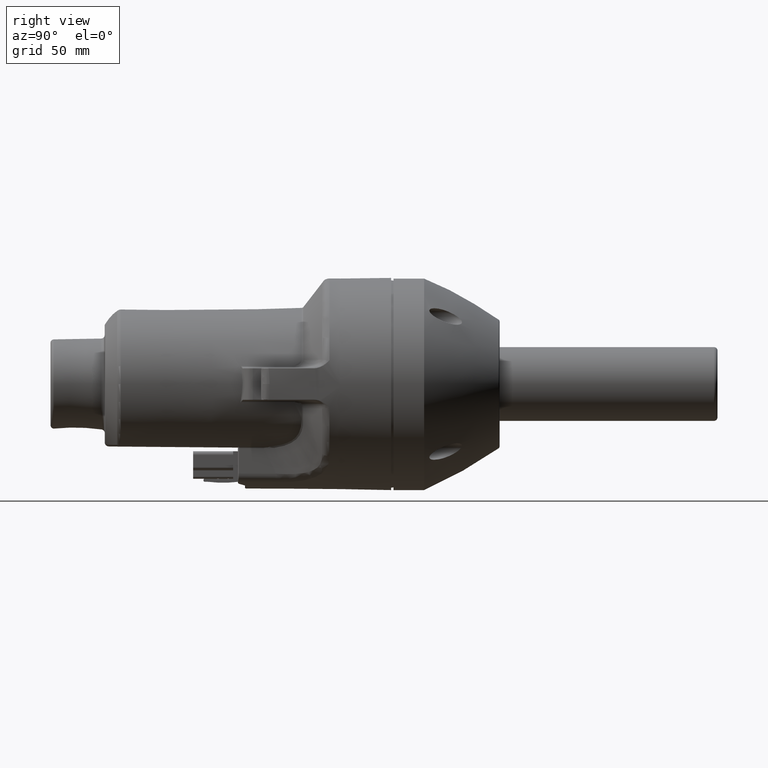
[diagram: clean part render]
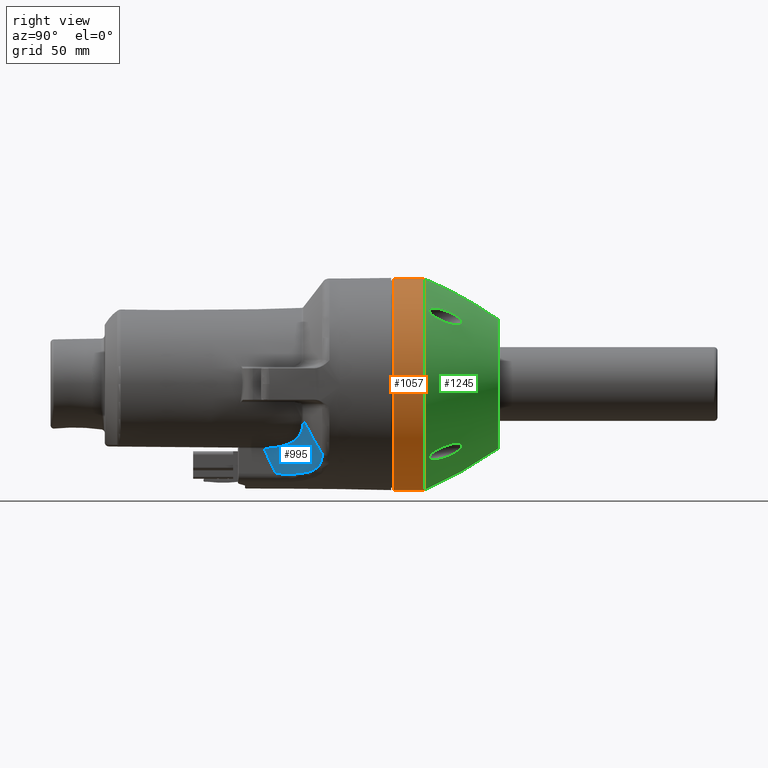
[diagram: same view with three faces highlighted in distinct colors, each labeled with its STEP entity id]
A machine part, right view with three faces highlighted in distinct colors.
Their STEP definitions:

[orange] entity #1057 — the highlighted cylindrical surface (bore or boss wall) has radius 45 mm, axis along (-0, -1, -0).
#1057 = ADVANCED_FACE( '', ( #2603, #2604 ), #2605, .T. );
#2603 = FACE_OUTER_BOUND( '', #5774, .T. );
#2604 = FACE_OUTER_BOUND( '', #5775, .T. );
#2605 = CYLINDRICAL_SURFACE( '', #5776, 44.9999999999978 );
#5774 = EDGE_LOOP( '', ( #12370 ) );
#5775 = EDGE_LOOP( '', ( #12371 ) );
#5776 = AXIS2_PLACEMENT_3D( '', #12372, #12373, #12374 );
#12370 = ORIENTED_EDGE( '', *, *, #17616, .T. );
#12371 = ORIENTED_EDGE( '', *, *, #17617, .T. );
#12372 = CARTESIAN_POINT( '', ( -4.11333660979750E-011, 43.8000000000026, -4.11104747799528E-011 ) );
#12373 = DIRECTION( '', ( -0.000000000000000, -1.00000000000000, -0.000000000000000 ) );
#12374 = DIRECTION( '', ( -1.44001312910900E-012, 0.000000000000000, -1.00000000000000 ) );
#17616 = EDGE_CURVE( '', #20750, #20750, #20751, .T. );
#17617 = EDGE_CURVE( '', #20752, #20752, #20753, .T. );
#20750 = VERTEX_POINT( '', #25809 );
#20751 = CIRCLE( '', #25810, 44.9999999999978 );
#20752 = VERTEX_POINT( '', #25811 );
#20753 = CIRCLE( '', #25812, 44.9999999999978 );
#25809 = CARTESIAN_POINT( '', ( -1.05906661218563E-010, -1.20000000000003, -45.0000000000389 ) );
#25810 = AXIS2_PLACEMENT_3D( '', #30853, #30854, #30855 );
#25811 = CARTESIAN_POINT( '', ( -1.05893300130394E-010, 11.8000000000011, -45.0000000000389 ) );
#25812 = AXIS2_PLACEMENT_3D( '', #30856, #30857, #30858 );
#30853 = CARTESIAN_POINT( '', ( -4.10916914287464E-011, -1.20000000000003, -4.11099798734750E-011 ) );
#30854 = DIRECTION( '', ( 0.000000000000000, 1.00000000000000, 0.000000000000000 ) );
#30855 = DIRECTION( '', ( -1.44033266199600E-012, 0.000000000000000, -1.00000000000000 ) );
#30856 = CARTESIAN_POINT( '', ( -4.11037307776420E-011, 11.8000000000011, -4.11101228464682E-011 ) );
#30857 = DIRECTION( '', ( 0.000000000000000, -1.00000000000000, -0.000000000000000 ) );
#30858 = DIRECTION( '', ( -1.43976820783900E-012, 0.000000000000000, -1.00000000000000 ) );

[blue] entity #995 — the highlighted face is a freeform B-spline surface patch.
#995 = ADVANCED_FACE( '', ( #2508 ), #2509, .F. );
#2508 = FACE_OUTER_BOUND( '', #5350, .T. );
#2509 = B_SPLINE_SURFACE_WITH_KNOTS( '', 3, 3, ( ( #5351, #5352, #5353, #5354, #5355, #5356, #5357, #5358, #5359, #5360, #5361 ), ( #5362, #5363, #5364, #5365, #5366, #5367, #5368, #5369, #5370, #5371, #5372 ), ( #5373, #5374, #5375, #5376, #5377, #5378, #5379, #5380, #5381, #5382, #5383 ), ( #5384, #5385, #5386, #5387, #5388, #5389, #5390, #5391, #5392, #5393, #5394 ), ( #5395, #5396, #5397, #5398, #5399, #5400, #5401, #5402, #5403, #5404, #5405 ), ( #5406, #5407, #5408, #5409, #5410, #5411, #5412, #5413, #5414, #5415, #5416 ), ( #5417, #5418, #5419, #5420, #5421, #5422, #5423, #5424, #5425, #5426, #5427 ), ( #5428, #5429, #5430, #5431, #5432, #5433, #5434, #5435, #5436, #5437, #5438 ) ), .UNSPECIFIED., .F., .F., .F., ( 4, 1, 1, 1, 1, 4 ), ( 4, 1, 1, 1, 1, 1, 1, 1, 4 ), ( 0.0658830669901700, 0.0692063448598600, 0.0722530988632400, 0.0783466068700100, 0.0844401148767700, 0.0908695102381700 ), ( -0.00941920894726400, 0.125000000000000, 0.250000000000000, 0.375000000000000, 0.500000000000000, 0.625000000000000, 0.750000000000000, 0.875000000000000, 1.01002126453000 ), .UNSPECIFIED. );
#5350 = EDGE_LOOP( '', ( #12094, #12095, #12096, #12097 ) );
#5351 = CARTESIAN_POINT( '', ( 18.1684240053043, -48.0563845691062, -44.2735891099726 ) );
#5352 = CARTESIAN_POINT( '', ( 18.1647375992863, -46.9957553844760, -43.6823402816268 ) );
#5353 = CARTESIAN_POINT( '', ( 18.3359168797414, -44.9487344388512, -42.5403589614792 ) );
#5354 = CARTESIAN_POINT( '', ( 19.0934363150551, -41.9823636615462, -40.8830170728676 ) );
#5355 = CARTESIAN_POINT( '', ( 20.2913625024567, -39.2092244630300, -39.3312530366762 ) );
#5356 = CARTESIAN_POINT( '', ( 21.9244290742571, -36.6117907635720, -37.8753222456734 ) );
#5357 = CARTESIAN_POINT( '', ( 23.9601535744916, -34.2417274559306, -36.5441842462072 ) );
#5358 = CARTESIAN_POINT( '', ( 26.3580437371218, -32.1461765027178, -35.3643161633268 ) );
#5359 = CARTESIAN_POINT( '', ( 29.1428897998798, -30.3192683205750, -34.3323252887808 ) );
#5360 = CARTESIAN_POINT( '', ( 31.2114937273068, -29.3390398392782, -33.7758156816346 ) );
#5361 = CARTESIAN_POINT( '', ( 32.3239032170376, -28.9043696668880, -33.5280891786380 ) );
#5362 = CARTESIAN_POINT( '', ( 18.1636973800942, -48.5965320913744, -43.3021892983438 ) );
#5363 = CARTESIAN_POINT( '', ( 18.1601122545873, -47.5382868997664, -42.7184020683844 ) );
#5364 = CARTESIAN_POINT( '', ( 18.3298044976583, -45.4958712189722, -41.5908411722788 ) );
#5365 = CARTESIAN_POINT( '', ( 19.0804180879801, -42.5355547265868, -39.9540997488416 ) );
#5366 = CARTESIAN_POINT( '', ( 20.2674592596512, -39.7669390328666, -38.4210070097754 ) );
#5367 = CARTESIAN_POINT( '', ( 21.8859328824181, -37.1720380712438, -36.9816616850174 ) );
#5368 = CARTESIAN_POINT( '', ( 23.9039520401918, -34.8019807922924, -35.6644212551906 ) );
#5369 = CARTESIAN_POINT( '', ( 26.2817572045288, -32.7034659904480, -34.4952375810658 ) );
#5370 = CARTESIAN_POINT( '', ( 29.0444086374064, -30.8701238480210, -33.4704729734236 ) );
#5371 = CARTESIAN_POINT( '', ( 31.0975946743332, -29.8830184057258, -32.9159774793434 ) );
#5372 = CARTESIAN_POINT( '', ( 32.2020918354894, -29.4440793568340, -32.6684794349450 ) );
#5373 = CARTESIAN_POINT( '', ( 18.1547388880646, -49.6201989921696, -41.4321206445592 ) );
#5374 = CARTESIAN_POINT( '', ( 18.1513519915465, -48.5665942797490, -40.8632597695070 ) );
#5375 = CARTESIAN_POINT( '', ( 18.3181368716312, -46.5331426331730, -39.7645448251836 ) );
#5376 = CARTESIAN_POINT( '', ( 19.0552445879461, -43.5846125186626, -38.1690500429512 ) );
#5377 = CARTESIAN_POINT( '', ( 20.2209892771151, -40.8248066844372, -36.6734144689502 ) );
#5378 = CARTESIAN_POINT( '', ( 21.8108946772979, -38.2348438047086, -35.2674552640086 ) );
#5379 = CARTESIAN_POINT( '', ( 23.7942233769165, -35.8648077700886, -33.9783513717618 ) );
#5380 = CARTESIAN_POINT( '', ( 26.1326310094112, -33.7605305319408, -32.8310232740172 ) );
#5381 = CARTESIAN_POINT( '', ( 28.8516814874792, -31.9146615898532, -31.8213720590082 ) );
#5382 = CARTESIAN_POINT( '', ( 30.8745166784784, -30.9141540318426, -31.2714664414226 ) );
#5383 = CARTESIAN_POINT( '', ( 31.9634150730674, -30.4668908381818, -31.0247467942990 ) );
#5384 = CARTESIAN_POINT( '', ( 18.1377040286850, -51.5663951197340, -37.7513336309384 ) );
#5385 = CARTESIAN_POINT( '', ( 18.1347182087689, -50.5220765244028, -37.2141738002310 ) );
#5386 = CARTESIAN_POINT( '', ( 18.2956331527118, -48.5065621622976, -36.1767183566548 ) );
#5387 = CARTESIAN_POINT( '', ( 19.0054563679114, -45.5816244368228, -34.6689872939162 ) );
#5388 = CARTESIAN_POINT( '', ( 20.1281433315526, -42.8394674465224, -33.2533743001288 ) );
#5389 = CARTESIAN_POINT( '', ( 21.6602184882699, -40.2594188202698, -31.9192395428766 ) );
#5390 = CARTESIAN_POINT( '', ( 23.5732042358798, -37.8894637507660, -30.6913745163662 ) );
#5391 = CARTESIAN_POINT( '', ( 25.8315415539078, -35.7736825391314, -29.5925973137218 ) );
#5392 = CARTESIAN_POINT( '', ( 28.4617109320904, -33.9027340337918, -28.6179609410274 ) );
#5393 = CARTESIAN_POINT( '', ( 30.4224182279654, -32.8753426268820, -28.0802970046988 ) );
#5394 = CARTESIAN_POINT( '', ( 31.4792917241202, -32.4113623347276, -27.8366624439628 ) );
#5395 = CARTESIAN_POINT( '', ( 18.1178352619609, -53.8357444716536, -33.2065510291578 ) );
#5396 = CARTESIAN_POINT( '', ( 18.1153610678567, -52.8030827834632, -32.7129485241880 ) );
#5397 = CARTESIAN_POINT( '', ( 18.2688111115376, -50.8100837929388, -31.7596553349946 ) );
#5398 = CARTESIAN_POINT( '', ( 18.9439059845786, -47.9147737574592, -30.3728250709416 ) );
#5399 = CARTESIAN_POINT( '', ( 20.0117236399626, -45.1948071467048, -29.0680675716988 ) );
#5400 = CARTESIAN_POINT( '', ( 21.4699737968271, -42.6272641709044, -27.8343877578594 ) );
#5401 = CARTESIAN_POINT( '', ( 23.2929387860308, -40.2574818460894, -26.6935218535658 ) );
#5402 = CARTESIAN_POINT( '', ( 25.4484672978328, -38.1273102149248, -25.6655731969196 ) );
#5403 = CARTESIAN_POINT( '', ( 27.9640173531844, -36.2248570859296, -24.7446896507529 ) );
#5404 = CARTESIAN_POINT( '', ( 29.8441282290740, -35.1635985737290, -24.2286812304959 ) );
#5405 = CARTESIAN_POINT( '', ( 30.8592820902024, -34.6785229782484, -23.9920669061411 ) );
#5406 = CARTESIAN_POINT( '', ( 18.0955267889249, -56.3827428002274, -27.5591707088026 ) );
#5407 = CARTESIAN_POINT( '', ( 18.0936991570277, -55.3644851220910, -27.1281039488652 ) );
#5408 = CARTESIAN_POINT( '', ( 18.2377553516097, -53.3993051053164, -26.2956260439488 ) );
#5409 = CARTESIAN_POINT( '', ( 18.8690945580575, -50.5406259485434, -25.0830173380586 ) );
#5410 = CARTESIAN_POINT( '', ( 19.8676652123371, -47.8481415943814, -23.9392748183244 ) );
#5411 = CARTESIAN_POINT( '', ( 21.2325121236107, -45.2961568467482, -22.8534598265475 ) );
#5412 = CARTESIAN_POINT( '', ( 22.9411858664977, -42.9267126568170, -21.8433972078578 ) );
#5413 = CARTESIAN_POINT( '', ( 24.9655802091690, -40.7788482856252, -20.9256705717781 ) );
#5414 = CARTESIAN_POINT( '', ( 27.3340415134180, -38.8374277536404, -20.0936957904351 ) );
#5415 = CARTESIAN_POINT( '', ( 29.1098705486210, -37.7341110618022, -19.6188878349881 ) );
#5416 = CARTESIAN_POINT( '', ( 30.0707319518626, -37.2227750309076, -19.3981888007711 ) );
#5417 = CARTESIAN_POINT( '', ( 18.0822622217151, -57.8965186504192, -23.6777431794354 ) );
#5418 = CARTESIAN_POINT( '', ( 18.0808667783262, -56.8876679931182, -23.2962498973943 ) );
#5419 = CARTESIAN_POINT( '', ( 18.2186706812472, -54.9406544047300, -22.5595307785901 ) );
#5420 = CARTESIAN_POINT( '', ( 18.8208503279167, -52.1059126652840, -21.4855542668370 ) );
#5421 = CARTESIAN_POINT( '', ( 19.7731935198839, -49.4314193168468, -20.4709654225593 ) );
#5422 = CARTESIAN_POINT( '', ( 21.0755241370996, -46.8896677859328, -19.5053368415597 ) );
#5423 = CARTESIAN_POINT( '', ( 22.7074239994071, -44.5205301612508, -18.6037904454715 ) );
#5424 = CARTESIAN_POINT( '', ( 24.6433072140744, -42.3611723479964, -17.7804451229426 ) );
#5425 = CARTESIAN_POINT( '', ( 26.9118685567496, -40.3942768720670, -17.0286273593701 ) );
#5426 = CARTESIAN_POINT( '', ( 28.6162773069042, -39.2633483791406, -16.5948616413178 ) );
#5427 = CARTESIAN_POINT( '', ( 29.5397383667856, -38.7347285454756, -16.3916363174212 ) );
#5428 = CARTESIAN_POINT( '', ( 18.0760482107802, -58.6055252060126, -21.6568511499525 ) );
#5429 = CARTESIAN_POINT( '', ( 18.0748658839958, -57.6012629560194, -21.3030448611606 ) );
#5430 = CARTESIAN_POINT( '', ( 18.2095928443051, -55.6631099087112, -20.6198032353377 ) );
#5431 = CARTESIAN_POINT( '', ( 18.7974135745871, -52.8400472983326, -19.6234075773736 ) );
#5432 = CARTESIAN_POINT( '', ( 19.7269744170086, -50.1743391928532, -18.6813985361757 ) );
#5433 = CARTESIAN_POINT( '', ( 20.9984568429236, -47.6375957853240, -17.7837735965117 ) );
#5434 = CARTESIAN_POINT( '', ( 22.5924082260482, -45.2686275359954, -16.9442658198588 ) );
#5435 = CARTESIAN_POINT( '', ( 24.4844420696260, -43.1036778953166, -16.1757190572094 ) );
#5436 = CARTESIAN_POINT( '', ( 26.7033665140390, -41.1243507292138, -15.4715636337349 ) );
#5437 = CARTESIAN_POINT( '', ( 28.3721498961760, -39.9799207912812, -15.0632408468668 ) );
#5438 = CARTESIAN_POINT( '', ( 29.2769045958324, -39.4428395521362, -14.8712410341107 ) );
#12094 = ORIENTED_EDGE( '', *, *, #17465, .F. );
#12095 = ORIENTED_EDGE( '', *, *, #17139, .T. );
#12096 = ORIENTED_EDGE( '', *, *, #17466, .F. );
#12097 = ORIENTED_EDGE( '', *, *, #17467, .T. );
#17139 = EDGE_CURVE( '', #19992, #19990, #19993, .T. );
#17465 = EDGE_CURVE( '', #19992, #20238, #20515, .T. );
#17466 = EDGE_CURVE( '', #20516, #19990, #20517, .T. );
#17467 = EDGE_CURVE( '', #20516, #20238, #20518, .T. );
#19990 = VERTEX_POINT( '', #24257 );
#19992 = VERTEX_POINT( '', #24262 );
#19993 = B_SPLINE_CURVE_WITH_KNOTS( '', 3, ( #24263, #24264, #24265, #24266, #24267, #24268, #24269 ), .UNSPECIFIED., .F., .F., ( 4, 1, 1, 1, 4 ), ( 0.000000000000000, 0.250000000000000, 0.500000000000000, 0.750000000000000, 1.00000000000000 ), .UNSPECIFIED. );
#20238 = VERTEX_POINT( '', #24787 );
#20515 = B_SPLINE_CURVE_WITH_KNOTS( '', 3, ( #25293, #25294, #25295, #25296, #25297, #25298, #25299, #25300, #25301, #25302, #25303, #25304, #25305, #25306, #25307, #25308, #25309, #25310, #25311, #25312, #25313, #25314, #25315, #25316, #25317 ), .UNSPECIFIED., .F., .F., ( 4, 1, 1, 1, 1, 1, 1, 1, 1, 1, 1, 1, 1, 1, 1, 1, 1, 1, 1, 1, 1, 1, 4 ), ( 0.000000000000000, 0.0170151382823442, 0.0359304599693014, 0.0567428902998534, 0.0794548479992024, 0.0920547960827126, 0.117534481358039, 0.154535053548363, 0.225467724267544, 0.292483419859832, 0.356427932990160, 0.525034581938901, 0.568796331828470, 0.630215186553640, 0.665841699921149, 0.737213571453668, 0.804498128109781, 0.856390988151573, 0.896075179871934, 0.930213113954650, 0.958898443310738, 0.982161205504017, 1.00000000000000 ), .UNSPECIFIED. );
#20516 = VERTEX_POINT( '', #25318 );
#20517 = B_SPLINE_CURVE_WITH_KNOTS( '', 3, ( #25319, #25320, #25321, #25322, #25323, #25324, #25325, #25326, #25327, #25328, #25329, #25330, #25331, #25332, #25333, #25334, #25335, #25336, #25337, #25338, #25339, #25340, #25341, #25342, #25343, #25344, #25345, #25346, #25347 ), .UNSPECIFIED., .F., .F., ( 4, 1, 1, 1, 1, 1, 1, 1, 1, 1, 1, 1, 1, 1, 1, 1, 1, 1, 1, 1, 1, 1, 1, 1, 1, 1, 4 ), ( 0.000000000000000, 0.0137812093434587, 0.0286744038588399, 0.0446631110207828, 0.0617342992852520, 0.0898693270613876, 0.117717086053491, 0.169211196467247, 0.217547756542132, 0.264414759697918, 0.311157191553696, 0.359197832757933, 0.408716747109980, 0.533346956980059, 0.614942793059650, 0.653205758847566, 0.692294951462991, 0.730377248113950, 0.776954801560952, 0.814161264410304, 0.840429603392269, 0.904204450518127, 0.926433513773720, 0.947133035912912, 0.966298666794117, 0.983923789103502, 1.00000000000000 ), .UNSPECIFIED. );
#20518 = B_SPLINE_CURVE_WITH_KNOTS( '', 3, ( #25348, #25349, #25350, #25351, #25352, #25353, #25354 ), .UNSPECIFIED., .F., .F., ( 4, 1, 1, 1, 4 ), ( 0.000000000000000, 0.0610881818962663, 0.376552592882666, 0.692017003868548, 1.00000000000000 ), .UNSPECIFIED. );
#24257 = CARTESIAN_POINT( '', ( 18.1402775218108, -51.1247838688968, -38.0293494960130 ) );
#24262 = CARTESIAN_POINT( '', ( 18.0963400759648, -56.1605207467806, -27.3491293445326 ) );
#24263 = CARTESIAN_POINT( '', ( 18.0963400759648, -56.1605207467806, -27.3491293445326 ) );
#24264 = CARTESIAN_POINT( '', ( 18.0991605369177, -55.8373279324614, -28.1178639756658 ) );
#24265 = CARTESIAN_POINT( '', ( 18.1051908036481, -55.1463636757084, -29.7161549195398 ) );
#24266 = CARTESIAN_POINT( '', ( 18.1154521409384, -53.9703694866042, -32.2886230343596 ) );
#24267 = CARTESIAN_POINT( '', ( 18.1270401737415, -52.6431042504110, -35.0461809415594 ) );
#24268 = CARTESIAN_POINT( '', ( 18.1356997133261, -51.6493487644690, -37.0140961925384 ) );
#24269 = CARTESIAN_POINT( '', ( 18.1402775218108, -51.1247838688968, -38.0293494960130 ) );
#24787 = CARTESIAN_POINT( '', ( 29.1342283248228, -39.4030872124132, -15.2560756383313 ) );
#25293 = CARTESIAN_POINT( '', ( 18.0963400759630, -56.1605207467806, -27.3491293445326 ) );
#25294 = CARTESIAN_POINT( '', ( 18.0983585542395, -56.0100941370895, -27.3469182362304 ) );
#25295 = CARTESIAN_POINT( '', ( 18.1026209264699, -55.6924418683781, -27.3422490917883 ) );
#25296 = CARTESIAN_POINT( '', ( 18.1201623434295, -55.1911640873907, -27.3278255432557 ) );
#25297 = CARTESIAN_POINT( '', ( 18.1494375290086, -54.6402505337442, -27.3053137165939 ) );
#25298 = CARTESIAN_POINT( '', ( 18.1865236364664, -54.1460637109789, -27.2778534095515 ) );
#25299 = CARTESIAN_POINT( '', ( 18.2360892498593, -53.6120281502769, -27.2417108868026 ) );
#25300 = CARTESIAN_POINT( '', ( 18.3100151846409, -52.9543288211124, -27.1882336578287 ) );
#25301 = CARTESIAN_POINT( '', ( 18.4788166542381, -51.7927523003352, -27.0667524375499 ) );
#25302 = CARTESIAN_POINT( '', ( 18.7868453560967, -50.2907115070033, -26.8440348540697 ) );
#25303 = CARTESIAN_POINT( '', ( 19.2740488247013, -48.6077191151168, -26.4846282096219 ) );
#25304 = CARTESIAN_POINT( '', ( 20.1805716471275, -46.2150419843098, -25.7941960940827 ) );
#25305 = CARTESIAN_POINT( '', ( 21.3356402299891, -44.2138461765621, -24.8556413912577 ) );
#25306 = CARTESIAN_POINT( '', ( 22.6722719654287, -42.6126004124601, -23.6236980041579 ) );
#25307 = CARTESIAN_POINT( '', ( 23.3999649958633, -41.8888162277544, -22.9119009035026 ) );
#25308 = CARTESIAN_POINT( '', ( 24.2941723105286, -41.1455019074292, -21.9801276885929 ) );
#25309 = CARTESIAN_POINT( '', ( 25.2361989082692, -40.5166499782548, -20.9268047392968 ) );
#25310 = CARTESIAN_POINT( '', ( 26.2514344876980, -40.0234190533196, -19.6705046631247 ) );
#25311 = CARTESIAN_POINT( '', ( 27.0681014428743, -39.7372265398132, -18.5619685749174 ) );
#25312 = CARTESIAN_POINT( '', ( 27.6894842612459, -39.5783625343484, -17.6533079212363 ) );
#25313 = CARTESIAN_POINT( '', ( 28.1772095107627, -39.4884695184236, -16.8942178401791 ) );
#25314 = CARTESIAN_POINT( '', ( 28.5717120602977, -39.4387360136497, -16.2449585844828 ) );
#25315 = CARTESIAN_POINT( '', ( 28.8816083295873, -39.4131379275489, -15.7118315290456 ) );
#25316 = CARTESIAN_POINT( '', ( 29.0577707522106, -39.4061291461361, -15.3940140033331 ) );
#25317 = CARTESIAN_POINT( '', ( 29.1342283248239, -39.4030872124148, -15.2560756383395 ) );
#25318 = CARTESIAN_POINT( '', ( 31.4961476199232, -31.4842084964304, -29.5776934358080 ) );
#25319 = CARTESIAN_POINT( '', ( 31.4961476199162, -31.4842084964174, -29.5776934358013 ) );
#25320 = CARTESIAN_POINT( '', ( 31.4115960237970, -31.4778106555071, -29.6805926086344 ) );
#25321 = CARTESIAN_POINT( '', ( 31.2356704897160, -31.4644987414716, -29.8946937346693 ) );
#25322 = CARTESIAN_POINT( '', ( 30.9560788114147, -31.4546368347470, -30.2240865665164 ) );
#25323 = CARTESIAN_POINT( '', ( 30.6513104512303, -31.4539899787652, -30.5739422046764 ) );
#25324 = CARTESIAN_POINT( '', ( 30.2557957265508, -31.4686095701871, -31.0143595617654 ) );
#25325 = CARTESIAN_POINT( '', ( 29.7736817328038, -31.5119538954611, -31.5298856516093 ) );
#25326 = CARTESIAN_POINT( '', ( 29.0484213492602, -31.6271234965917, -32.2666541136089 ) );
#25327 = CARTESIAN_POINT( '', ( 28.1638157887806, -31.8560731862245, -33.1021718358173 ) );
#25328 = CARTESIAN_POINT( '', ( 27.1300948368899, -32.2667774999229, -33.9888009501387 ) );
#25329 = CARTESIAN_POINT( '', ( 26.1314626488768, -32.8063704769955, -34.7674752141557 ) );
#25330 = CARTESIAN_POINT( '', ( 25.1555855030131, -33.4817487834131, -35.4590545191106 ) );
#25331 = CARTESIAN_POINT( '', ( 24.2011497609774, -34.3022540661042, -36.0708748502983 ) );
#25332 = CARTESIAN_POINT( '', ( 22.8197356946393, -35.7502862161687, -36.8666495345020 ) );
#25333 = CARTESIAN_POINT( '', ( 21.4452698325247, -37.7452901195614, -37.5010162701381 ) );
#25334 = CARTESIAN_POINT( '', ( 20.4204277619132, -39.8514499869635, -37.8633757477939 ) );
#25335 = CARTESIAN_POINT( '', ( 19.8559405700412, -41.2732291897682, -38.0275181118968 ) );
#25336 = CARTESIAN_POINT( '', ( 19.4929798179412, -42.3261983738130, -38.1163249656642 ) );
#25337 = CARTESIAN_POINT( '', ( 19.1526710607411, -43.4725568628940, -38.1829819508188 ) );
#25338 = CARTESIAN_POINT( '', ( 18.8689411886924, -44.6169632646034, -38.2204009478460 ) );
#25339 = CARTESIAN_POINT( '', ( 18.6573736125401, -45.6607196472532, -38.2313668297409 ) );
#25340 = CARTESIAN_POINT( '', ( 18.4508719401358, -46.8744716175227, -38.2252451744561 ) );
#25341 = CARTESIAN_POINT( '', ( 18.3155196244541, -47.9528723078793, -38.1983263813389 ) );
#25342 = CARTESIAN_POINT( '', ( 18.2279807903310, -48.9806187717774, -38.1554414982197 ) );
#25343 = CARTESIAN_POINT( '', ( 18.1887555463009, -49.5793978732830, -38.1258216045540 ) );
#25344 = CARTESIAN_POINT( '', ( 18.1626143451263, -50.1341220492856, -38.0944468419298 ) );
#25345 = CARTESIAN_POINT( '', ( 18.1464609494949, -50.6443811643087, -38.0625999143195 ) );
#25346 = CARTESIAN_POINT( '', ( 18.1422804616697, -50.9696325299530, -38.0400880880076 ) );
#25347 = CARTESIAN_POINT( '', ( 18.1402862852519, -51.1247839453741, -38.0293494959986 ) );
#25348 = CARTESIAN_POINT( '', ( 31.4961472050576, -31.4842077547374, -29.5776930462129 ) );
#25349 = CARTESIAN_POINT( '', ( 31.4508340243024, -31.6679724547260, -29.2761026690921 ) );
#25350 = CARTESIAN_POINT( '', ( 31.1697700651645, -32.7942111683243, -27.4201733563701 ) );
#25351 = CARTESIAN_POINT( '', ( 30.6338902604608, -34.7876203512447, -24.0452691055433 ) );
#25352 = CARTESIAN_POINT( '', ( 29.8774629955488, -37.2718429929284, -19.5663961036140 ) );
#25353 = CARTESIAN_POINT( '', ( 29.3748553645168, -38.7368129302067, -16.6683467405922 ) );
#25354 = CARTESIAN_POINT( '', ( 29.1342239296997, -39.4030897474353, -15.2560775831745 ) );

[green] entity #1245 — the highlighted face is a freeform B-spline surface patch.
#1245 = ADVANCED_FACE( '', ( #2894, #2895, #2896, #2897, #2898, #2899 ), #2900, .T. );
#2894 = FACE_OUTER_BOUND( '', #6592, .T. );
#2895 = FACE_OUTER_BOUND( '', #6593, .T. );
#2896 = FACE_BOUND( '', #6594, .T. );
#2897 = FACE_BOUND( '', #6595, .T. );
#2898 = FACE_BOUND( '', #6596, .T. );
#2899 = FACE_BOUND( '', #6597, .T. );
#2900 = ( BOUNDED_SURFACE(  )B_SPLINE_SURFACE( 3, 3, ( ( #6600, #6601, #6602, #6603, #6604, #6605, #6606 ), ( #6607, #6608, #6609, #6610, #6611, #6612, #6613 ), ( #6614, #6615, #6616, #6617, #6618, #6619, #6620 ), ( #6621, #6622, #6623, #6624, #6625, #6626, #6627 ) ), .UNSPECIFIED., .F., .T., .F. )B_SPLINE_SURFACE_WITH_KNOTS( ( 4, 4 ), ( 4, 3, 4 ), ( 0.000000000000000, 6.28318530717959 ), ( 0.415619764208006, 0.511010753656610, 0.606401743105214 ), .UNSPECIFIED. )GEOMETRIC_REPRESENTATION_ITEM(  )RATIONAL_B_SPLINE_SURFACE( ( ( 1.00000000000000, 0.333333333333333, 0.333333333333333, 1.00000000000000, 0.333333333333333, 0.333333333333333, 1.00000000000000 ), ( 0.996969152341611, 0.332323050780537, 0.332323050780537, 0.996969152341611, 0.332323050780537, 0.332323050780537, 0.996969152341611 ), ( 0.996969152341611, 0.332323050780537, 0.332323050780537, 0.996969152341611, 0.332323050780537, 0.332323050780537, 0.996969152341611 ), ( 1.00000000000000, 0.333333333333333, 0.333333333333333, 1.00000000000000, 0.333333333333333, 0.333333333333333, 1.00000000000000 ) ) )REPRESENTATION_ITEM( '' )SURFACE(  ) );
#6592 = EDGE_LOOP( '', ( #13190 ) );
#6593 = EDGE_LOOP( '', ( #13191 ) );
#6594 = EDGE_LOOP( '', ( #13192, #13193 ) );
#6595 = EDGE_LOOP( '', ( #13194, #13195 ) );
#6596 = EDGE_LOOP( '', ( #13196, #13197 ) );
#6597 = EDGE_LOOP( '', ( #13198, #13199 ) );
#6600 = CARTESIAN_POINT( '', ( -3.68981785158548E-011, 43.3699144537588, 27.2991761941197 ) );
#6601 = CARTESIAN_POINT( '', ( 54.5983523883326, 43.3699144537588, 27.2991761941197 ) );
#6602 = CARTESIAN_POINT( '', ( 54.5983523883326, 43.3699144537588, -27.2991761942498 ) );
#6603 = CARTESIAN_POINT( '', ( -3.68981785158548E-011, 43.3699144537588, -27.2991761942498 ) );
#6604 = CARTESIAN_POINT( '', ( -54.5983523884064, 43.3699144537588, -27.2991761942498 ) );
#6605 = CARTESIAN_POINT( '', ( -54.5983523884064, 43.3699144537588, 27.2991761941197 ) );
#6606 = CARTESIAN_POINT( '', ( -3.68981785158548E-011, 43.3699144537588, 27.2991761941197 ) );
#6607 = CARTESIAN_POINT( '', ( -3.68987596770638E-011, 33.4262936796669, 34.1958360429489 ) );
#6608 = CARTESIAN_POINT( '', ( 68.3916720859909, 33.4262936796669, 34.1958360429489 ) );
#6609 = CARTESIAN_POINT( '', ( 68.3916720859909, 33.4262936796669, -34.1958360430789 ) );
#6610 = CARTESIAN_POINT( '', ( -3.68987596770638E-011, 33.4262936796669, -34.1958360430789 ) );
#6611 = CARTESIAN_POINT( '', ( -68.3916720860647, 33.4262936796669, -34.1958360430789 ) );
#6612 = CARTESIAN_POINT( '', ( -68.3916720860647, 33.4262936796669, 34.1958360429489 ) );
#6613 = CARTESIAN_POINT( '', ( -3.68987596770638E-011, 33.4262936796669, 34.1958360429489 ) );
#6614 = CARTESIAN_POINT( '', ( -3.68993765880369E-011, 22.8709973666329, 40.1140478432695 ) );
#6615 = CARTESIAN_POINT( '', ( 80.2280956866322, 22.8709973666328, 40.1140478432695 ) );
#6616 = CARTESIAN_POINT( '', ( 80.2280956866322, 22.8709973666329, -40.1140478433996 ) );
#6617 = CARTESIAN_POINT( '', ( -3.68993765880369E-011, 22.8709973666329, -40.1140478433996 ) );
#6618 = CARTESIAN_POINT( '', ( -80.2280956867060, 22.8709973666329, -40.1140478433996 ) );
#6619 = CARTESIAN_POINT( '', ( -80.2280956867060, 22.8709973666329, 40.1140478432695 ) );
#6620 = CARTESIAN_POINT( '', ( -3.68993765880369E-011, 22.8709973666329, 40.1140478432695 ) );
#6621 = CARTESIAN_POINT( '', ( -3.69000236394843E-011, 11.7999999999985, 44.9999999999510 ) );
#6622 = CARTESIAN_POINT( '', ( 89.9999999999951, 11.7999999999985, 44.9999999999510 ) );
#6623 = CARTESIAN_POINT( '', ( 89.9999999999951, 11.7999999999985, -45.0000000000810 ) );
#6624 = CARTESIAN_POINT( '', ( -3.69000236394843E-011, 11.7999999999985, -45.0000000000810 ) );
#6625 = CARTESIAN_POINT( '', ( -90.0000000000689, 11.7999999999985, -45.0000000000810 ) );
#6626 = CARTESIAN_POINT( '', ( -90.0000000000689, 11.7999999999985, 44.9999999999510 ) );
#6627 = CARTESIAN_POINT( '', ( -3.69000236394843E-011, 11.7999999999985, 44.9999999999510 ) );
#13190 = ORIENTED_EDGE( '', *, *, #17617, .F. );
#13191 = ORIENTED_EDGE( '', *, *, #18013, .F. );
#13192 = ORIENTED_EDGE( '', *, *, #17752, .F. );
#13193 = ORIENTED_EDGE( '', *, *, #17751, .F. );
#13194 = ORIENTED_EDGE( '', *, *, #17656, .F. );
#13195 = ORIENTED_EDGE( '', *, *, #17655, .T. );
#13196 = ORIENTED_EDGE( '', *, *, #18014, .F. );
#13197 = ORIENTED_EDGE( '', *, *, #18015, .F. );
#13198 = ORIENTED_EDGE( '', *, *, #17279, .T. );
#13199 = ORIENTED_EDGE( '', *, *, #17278, .F. );
#17278 = EDGE_CURVE( '', #20210, #20211, #20212, .T. );
#17279 = EDGE_CURVE( '', #20210, #20211, #20213, .T. );
#17617 = EDGE_CURVE( '', #20752, #20752, #20753, .T. );
#17655 = EDGE_CURVE( '', #20807, #20808, #20809, .T. );
#17656 = EDGE_CURVE( '', #20807, #20808, #20810, .T. );
#17751 = EDGE_CURVE( '', #20958, #20959, #20960, .T. );
#17752 = EDGE_CURVE( '', #20959, #20958, #20961, .T. );
#18013 = EDGE_CURVE( '', #21343, #21343, #21344, .T. );
#18014 = EDGE_CURVE( '', #21345, #21346, #21347, .T. );
#18015 = EDGE_CURVE( '', #21346, #21345, #21348, .T. );
#20210 = VERTEX_POINT( '', #24657 );
#20211 = VERTEX_POINT( '', #24658 );
#20212 = B_SPLINE_CURVE_WITH_KNOTS( '', 3, ( #24659, #24660, #24661, #24662, #24663, #24664, #24665, #24666, #24667, #24668, #24669, #24670, #24671, #24672, #24673, #24674, #24675, #24676, #24677, #24678, #24679, #24680, #24681, #24682, #24683, #24684, #24685, #24686, #24687, #24688, #24689, #24690, #24691, #24692, #24693, #24694, #24695, #24696, #24697, #24698, #24699, #24700, #24701, #24702, #24703, #24704, #24705, #24706, #24707, #24708, #24709, #24710, #24711, #24712, #24713, #24714, #24715, #24716, #24717, #24718, #24719, #24720, #24721 ), .UNSPECIFIED., .F., .F., ( 4, 1, 1, 1, 1, 1, 1, 1, 1, 1, 1, 1, 1, 1, 1, 1, 1, 1, 1, 1, 1, 1, 1, 1, 1, 1, 1, 1, 1, 1, 1, 1, 1, 1, 1, 1, 1, 1, 1, 1, 1, 1, 1, 1, 1, 1, 1, 1, 1, 1, 1, 1, 1, 1, 1, 1, 1, 1, 1, 1, 4 ), ( 0.000000000000000, 0.0166666666666700, 0.0333333333333300, 0.0500000000000000, 0.0666666666666700, 0.0833333333333300, 0.100000000000000, 0.116666666666700, 0.133333333333300, 0.150000000000000, 0.166666666666700, 0.183333333333300, 0.200000000000000, 0.216666666666700, 0.233333333333300, 0.250000000000000, 0.266666666666700, 0.283333333333300, 0.300000000000000, 0.316666666666700, 0.333333333333300, 0.350000000000000, 0.366666666666700, 0.383333333333300, 0.400000000000000, 0.416666666666700, 0.433333333333300, 0.450000000000000, 0.466666666666700, 0.483333333333300, 0.500000000000000, 0.516666666666700, 0.533333333333300, 0.550000000000000, 0.566666666666700, 0.583333333333300, 0.600000000000000, 0.616666666666700, 0.633333333333300, 0.650000000000000, 0.666666666666700, 0.683333333333300, 0.700000000000000, 0.716666666666700, 0.733333333333300, 0.750000000000000, 0.766666666666700, 0.783333333333300, 0.800000000000000, 0.816666666666700, 0.833333333333300, 0.850000000000000, 0.866666666666700, 0.883333333333300, 0.900000000000000, 0.916666666666700, 0.933333333333300, 0.950000000000000, 0.966666666666700, 0.983333333333300, 1.00000000000000 ), .UNSPECIFIED. );
#20213 = B_SPLINE_CURVE_WITH_KNOTS( '', 3, ( #24722, #24723, #24724, #24725, #24726, #24727, #24728, #24729, #24730, #24731, #24732, #24733, #24734, #24735, #24736, #24737, #24738, #24739, #24740, #24741, #24742, #24743, #24744, #24745, #24746, #24747, #24748, #24749, #24750, #24751, #24752, #24753, #24754, #24755, #24756, #24757, #24758, #24759 ), .UNSPECIFIED., .F., .F., ( 4, 2, 2, 2, 2, 2, 2, 2, 2, 2, 2, 2, 2, 2, 2, 2, 2, 2, 4 ), ( 2.31363211774116E-015, 0.00113719648553158, 0.00170579472829621, 0.00227439297106084, 0.00284299121382547, 0.00341158945659010, 0.00398018769935473, 0.00454878594211937, 0.00511738418488400, 0.00568598242764863, 0.00682317891317789, 0.00796037539870716, 0.00909757188423642, 0.0113719648552950, 0.0136463578263535, 0.0147835543118828, 0.0159207507974120, 0.0170579472829413, 0.0181951437684706 ), .UNSPECIFIED. );
#20752 = VERTEX_POINT( '', #25811 );
#20753 = CIRCLE( '', #25812, 44.9999999999978 );
#20807 = VERTEX_POINT( '', #25883 );
#20808 = VERTEX_POINT( '', #25884 );
#20809 = B_SPLINE_CURVE_WITH_KNOTS( '', 3, ( #25885, #25886, #25887, #25888, #25889, #25890, #25891, #25892, #25893, #25894, #25895, #25896, #25897, #25898, #25899, #25900, #25901, #25902, #25903, #25904, #25905, #25906, #25907, #25908, #25909, #25910, #25911, #25912, #25913, #25914, #25915, #25916, #25917, #25918, #25919, #25920, #25921, #25922 ), .UNSPECIFIED., .F., .F., ( 4, 2, 2, 2, 2, 2, 2, 2, 2, 2, 2, 2, 2, 2, 2, 2, 2, 2, 4 ), ( 4.53560894242431E-015, 0.00113719648552343, 0.00170579472828288, 0.00227439297104233, 0.00284299121380178, 0.00341158945656123, 0.00398018769932068, 0.00454878594208013, 0.00511738418483958, 0.00568598242759903, 0.00682317891311793, 0.00796037539863683, 0.00909757188415574, 0.0113719648551935, 0.0136463578262313, 0.0147835543117502, 0.0159207507972691, 0.0170579472827880, 0.0181951437683069 ), .UNSPECIFIED. );
#20810 = B_SPLINE_CURVE_WITH_KNOTS( '', 3, ( #25923, #25924, #25925, #25926, #25927, #25928, #25929, #25930, #25931, #25932, #25933, #25934, #25935, #25936, #25937, #25938, #25939, #25940, #25941, #25942, #25943, #25944, #25945, #25946, #25947, #25948, #25949, #25950, #25951, #25952, #25953, #25954, #25955, #25956, #25957, #25958, #25959, #25960, #25961, #25962, #25963, #25964, #25965, #25966, #25967, #25968, #25969, #25970, #25971, #25972, #25973, #25974, #25975, #25976, #25977, #25978, #25979, #25980, #25981, #25982, #25983, #25984, #25985 ), .UNSPECIFIED., .F., .F., ( 4, 1, 1, 1, 1, 1, 1, 1, 1, 1, 1, 1, 1, 1, 1, 1, 1, 1, 1, 1, 1, 1, 1, 1, 1, 1, 1, 1, 1, 1, 1, 1, 1, 1, 1, 1, 1, 1, 1, 1, 1, 1, 1, 1, 1, 1, 1, 1, 1, 1, 1, 1, 1, 1, 1, 1, 1, 1, 1, 1, 4 ), ( 0.000000000000000, 0.0166666666666700, 0.0333333333333300, 0.0500000000000000, 0.0666666666666700, 0.0833333333333300, 0.100000000000000, 0.116666666666700, 0.133333333333300, 0.150000000000000, 0.166666666666700, 0.183333333333300, 0.200000000000000, 0.216666666666700, 0.233333333333300, 0.250000000000000, 0.266666666666700, 0.283333333333300, 0.300000000000000, 0.316666666666700, 0.333333333333300, 0.350000000000000, 0.366666666666700, 0.383333333333300, 0.400000000000000, 0.416666666666700, 0.433333333333300, 0.450000000000000, 0.466666666666700, 0.483333333333300, 0.500000000000000, 0.516666666666700, 0.533333333333300, 0.550000000000000, 0.566666666666700, 0.583333333333300, 0.600000000000000, 0.616666666666700, 0.633333333333300, 0.650000000000000, 0.666666666666700, 0.683333333333300, 0.700000000000000, 0.716666666666700, 0.733333333333300, 0.750000000000000, 0.766666666666700, 0.783333333333300, 0.800000000000000, 0.816666666666700, 0.833333333333300, 0.850000000000000, 0.866666666666700, 0.883333333333300, 0.900000000000000, 0.916666666666700, 0.933333333333300, 0.950000000000000, 0.966666666666700, 0.983333333333300, 1.00000000000000 ), .UNSPECIFIED. );
#20958 = VERTEX_POINT( '', #26224 );
#20959 = VERTEX_POINT( '', #26225 );
#20960 = B_SPLINE_CURVE_WITH_KNOTS( '', 3, ( #26226, #26227, #26228, #26229, #26230, #26231, #26232, #26233, #26234, #26235, #26236, #26237, #26238, #26239, #26240, #26241, #26242, #26243, #26244, #26245, #26246, #26247, #26248, #26249, #26250, #26251, #26252, #26253, #26254, #26255, #26256, #26257, #26258, #26259, #26260, #26261, #26262, #26263 ), .UNSPECIFIED., .F., .F., ( 4, 2, 2, 2, 2, 2, 2, 2, 2, 2, 2, 2, 2, 2, 2, 2, 2, 2, 4 ), ( 5.93336394587805E-015, 0.00113719648553434, 0.00170579472829854, 0.00227439297106275, 0.00284299121382695, 0.00341158945659115, 0.00398018769935536, 0.00454878594211956, 0.00511738418488376, 0.00568598242764797, 0.00682317891317638, 0.00796037539870480, 0.00909757188423321, 0.0113719648552901, 0.0136463578263469, 0.0147835543118753, 0.0159207507974037, 0.0170579472829322, 0.0181951437684606 ), .UNSPECIFIED. );
#20961 = B_SPLINE_CURVE_WITH_KNOTS( '', 3, ( #26264, #26265, #26266, #26267, #26268, #26269, #26270, #26271, #26272, #26273, #26274, #26275, #26276, #26277, #26278, #26279, #26280, #26281, #26282, #26283, #26284, #26285, #26286, #26287, #26288, #26289, #26290, #26291, #26292, #26293, #26294, #26295, #26296, #26297, #26298, #26299, #26300, #26301, #26302, #26303, #26304, #26305, #26306, #26307, #26308, #26309, #26310, #26311, #26312, #26313, #26314, #26315, #26316, #26317, #26318, #26319, #26320, #26321, #26322, #26323, #26324, #26325, #26326 ), .UNSPECIFIED., .F., .F., ( 4, 1, 1, 1, 1, 1, 1, 1, 1, 1, 1, 1, 1, 1, 1, 1, 1, 1, 1, 1, 1, 1, 1, 1, 1, 1, 1, 1, 1, 1, 1, 1, 1, 1, 1, 1, 1, 1, 1, 1, 1, 1, 1, 1, 1, 1, 1, 1, 1, 1, 1, 1, 1, 1, 1, 1, 1, 1, 1, 1, 4 ), ( 0.000000000000000, 0.0166666666666700, 0.0333333333333300, 0.0500000000000000, 0.0666666666666700, 0.0833333333333300, 0.100000000000000, 0.116666666666700, 0.133333333333300, 0.150000000000000, 0.166666666666700, 0.183333333333300, 0.200000000000000, 0.216666666666700, 0.233333333333300, 0.250000000000000, 0.266666666666700, 0.283333333333300, 0.300000000000000, 0.316666666666700, 0.333333333333300, 0.350000000000000, 0.366666666666700, 0.383333333333300, 0.400000000000000, 0.416666666666700, 0.433333333333300, 0.450000000000000, 0.466666666666700, 0.483333333333300, 0.500000000000000, 0.516666666666700, 0.533333333333300, 0.550000000000000, 0.566666666666700, 0.583333333333300, 0.600000000000000, 0.616666666666700, 0.633333333333300, 0.650000000000000, 0.666666666666700, 0.683333333333300, 0.700000000000000, 0.716666666666700, 0.733333333333300, 0.750000000000000, 0.766666666666700, 0.783333333333300, 0.800000000000000, 0.816666666666700, 0.833333333333300, 0.850000000000000, 0.866666666666700, 0.883333333333300, 0.900000000000000, 0.916666666666700, 0.933333333333300, 0.950000000000000, 0.966666666666700, 0.983333333333300, 1.00000000000000 ), .UNSPECIFIED. );
#21343 = VERTEX_POINT( '', #27266 );
#21344 = CIRCLE( '', #27267, 27.2991761941470 );
#21345 = VERTEX_POINT( '', #27268 );
#21346 = VERTEX_POINT( '', #27269 );
#21347 = B_SPLINE_CURVE_WITH_KNOTS( '', 3, ( #27270, #27271, #27272, #27273, #27274, #27275, #27276, #27277, #27278, #27279, #27280, #27281, #27282, #27283, #27284, #27285, #27286, #27287, #27288, #27289, #27290, #27291, #27292, #27293, #27294, #27295, #27296, #27297, #27298, #27299, #27300, #27301, #27302, #27303, #27304, #27305, #27306, #27307 ), .UNSPECIFIED., .F., .F., ( 4, 2, 2, 2, 2, 2, 2, 2, 2, 2, 2, 2, 2, 2, 2, 2, 2, 2, 4 ), ( 2.08022206598120E-016, 0.00113719648552003, 0.00170579472827994, 0.00227439297103985, 0.00284299121379976, 0.00341158945655968, 0.00398018769931959, 0.00454878594207950, 0.00511738418483941, 0.00568598242759932, 0.00682317891311915, 0.00796037539863898, 0.00909757188415881, 0.0113719648551985, 0.0136463578262381, 0.0147835543117579, 0.0159207507972777, 0.0170579472827976, 0.0181951437683174 ), .UNSPECIFIED. );
#21348 = B_SPLINE_CURVE_WITH_KNOTS( '', 3, ( #27308, #27309, #27310, #27311, #27312, #27313, #27314, #27315, #27316, #27317, #27318, #27319, #27320, #27321, #27322, #27323, #27324, #27325, #27326, #27327, #27328, #27329, #27330, #27331, #27332, #27333, #27334, #27335, #27336, #27337, #27338, #27339, #27340, #27341, #27342, #27343, #27344, #27345, #27346, #27347, #27348, #27349, #27350, #27351, #27352, #27353, #27354, #27355, #27356, #27357, #27358, #27359, #27360, #27361, #27362, #27363, #27364, #27365, #27366, #27367, #27368, #27369, #27370 ), .UNSPECIFIED., .F., .F., ( 4, 1, 1, 1, 1, 1, 1, 1, 1, 1, 1, 1, 1, 1, 1, 1, 1, 1, 1, 1, 1, 1, 1, 1, 1, 1, 1, 1, 1, 1, 1, 1, 1, 1, 1, 1, 1, 1, 1, 1, 1, 1, 1, 1, 1, 1, 1, 1, 1, 1, 1, 1, 1, 1, 1, 1, 1, 1, 1, 1, 4 ), ( 0.000000000000000, 0.0166666666666700, 0.0333333333333300, 0.0500000000000000, 0.0666666666666700, 0.0833333333333300, 0.100000000000000, 0.116666666666700, 0.133333333333300, 0.150000000000000, 0.166666666666700, 0.183333333333300, 0.200000000000000, 0.216666666666700, 0.233333333333300, 0.250000000000000, 0.266666666666700, 0.283333333333300, 0.300000000000000, 0.316666666666700, 0.333333333333300, 0.350000000000000, 0.366666666666700, 0.383333333333300, 0.400000000000000, 0.416666666666700, 0.433333333333300, 0.450000000000000, 0.466666666666700, 0.483333333333300, 0.500000000000000, 0.516666666666700, 0.533333333333300, 0.550000000000000, 0.566666666666700, 0.583333333333300, 0.600000000000000, 0.616666666666700, 0.633333333333300, 0.650000000000000, 0.666666666666700, 0.683333333333300, 0.700000000000000, 0.716666666666700, 0.733333333333300, 0.750000000000000, 0.766666666666700, 0.783333333333300, 0.800000000000000, 0.816666666666700, 0.833333333333300, 0.850000000000000, 0.866666666666700, 0.883333333333300, 0.900000000000000, 0.916666666666700, 0.933333333333300, 0.950000000000000, 0.966666666666700, 0.983333333333300, 1.00000000000000 ), .UNSPECIFIED. );
#24657 = CARTESIAN_POINT( '', ( 28.6378246380284, 25.8293134972768, -25.1378246380958 ) );
#24658 = CARTESIAN_POINT( '', ( 28.6378246380030, 16.0829199455004, -32.1378246380906 ) );
#24659 = CARTESIAN_POINT( '', ( 28.6378246380284, 25.8293134972768, -25.1378246380958 ) );
#24660 = CARTESIAN_POINT( '', ( 28.7046924227838, 25.7368672275850, -25.1378246380958 ) );
#24661 = CARTESIAN_POINT( '', ( 28.8382752308272, 25.5468901275806, -25.1416550040138 ) );
#24662 = CARTESIAN_POINT( '', ( 29.0379781472702, 25.2470130430510, -25.1588485238914 ) );
#24663 = CARTESIAN_POINT( '', ( 29.2368030347098, 24.9324849459032, -25.1874972979349 ) );
#24664 = CARTESIAN_POINT( '', ( 29.4348672072624, 24.6028704781256, -25.2277847667044 ) );
#24665 = CARTESIAN_POINT( '', ( 29.6315354870772, 24.2589610277950, -25.2797569373141 ) );
#24666 = CARTESIAN_POINT( '', ( 29.8307862116382, 23.8929237326447, -25.3450764888846 ) );
#24667 = CARTESIAN_POINT( '', ( 30.0361762061914, 23.4958238683929, -25.4266110781976 ) );
#24668 = CARTESIAN_POINT( '', ( 30.2500682510506, 23.0592816150682, -25.5280031588776 ) );
#24669 = CARTESIAN_POINT( '', ( 30.4742027315590, 22.5737548811452, -25.6543262981028 ) );
#24670 = CARTESIAN_POINT( '', ( 30.7004250885368, 22.0503344960145, -25.8056291845998 ) );
#24671 = CARTESIAN_POINT( '', ( 30.9208265747840, 21.5026621574828, -25.9798809450618 ) );
#24672 = CARTESIAN_POINT( '', ( 31.1293771383780, 20.9430146881033, -26.1741771715308 ) );
#24673 = CARTESIAN_POINT( '', ( 31.3236859763534, 20.3760981011920, -26.3874456722726 ) );
#24674 = CARTESIAN_POINT( '', ( 31.5014839219506, 19.8067176023098, -26.6184324185786 ) );
#24675 = CARTESIAN_POINT( '', ( 31.6595819672982, 19.2438504076096, -26.8638314915082 ) );
#24676 = CARTESIAN_POINT( '', ( 31.7946268815106, 18.7007923811599, -27.1174583777510 ) );
#24677 = CARTESIAN_POINT( '', ( 31.9059154587806, 18.1847484450659, -27.3748975651576 ) );
#24678 = CARTESIAN_POINT( '', ( 31.9935891240984, 17.7019745190612, -27.6316067440420 ) );
#24679 = CARTESIAN_POINT( '', ( 32.0589610104486, 17.2551792296386, -27.8844324652374 ) );
#24680 = CARTESIAN_POINT( '', ( 32.1037228556720, 16.8462750242431, -28.1304238487934 ) );
#24681 = CARTESIAN_POINT( '', ( 32.1299790918564, 16.4749957499604, -28.3677716807770 ) );
#24682 = CARTESIAN_POINT( '', ( 32.1398849484734, 16.1411537078389, -28.5945568153694 ) );
#24683 = CARTESIAN_POINT( '', ( 32.1356813828140, 15.8427729348734, -28.8100347940392 ) );
#24684 = CARTESIAN_POINT( '', ( 32.1194907239584, 15.5779767447767, -29.0134966021770 ) );
#24685 = CARTESIAN_POINT( '', ( 32.0932783897182, 15.3440842696568, -29.2049459544566 ) );
#24686 = CARTESIAN_POINT( '', ( 32.0587405309048, 15.1382757553691, -29.3847394488440 ) );
#24687 = CARTESIAN_POINT( '', ( 32.0175013615418, 14.9583715107994, -29.5528417102766 ) );
#24688 = CARTESIAN_POINT( '', ( 31.9706615562630, 14.8010061317716, -29.7105657559404 ) );
#24689 = CARTESIAN_POINT( '', ( 31.9193235346060, 14.6641460691727, -29.8582738593044 ) );
#24690 = CARTESIAN_POINT( '', ( 31.8644766519708, 14.5457995922796, -29.9964049354420 ) );
#24691 = CARTESIAN_POINT( '', ( 31.8065577284896, 14.4434432658091, -30.1263179194306 ) );
#24692 = CARTESIAN_POINT( '', ( 31.7459181605894, 14.3552583416357, -30.2489557794884 ) );
#24693 = CARTESIAN_POINT( '', ( 31.6832457021906, 14.2802234215357, -30.3643608393306 ) );
#24694 = CARTESIAN_POINT( '', ( 31.6189088297978, 14.2170014659427, -30.4731137281490 ) );
#24695 = CARTESIAN_POINT( '', ( 31.5528106331908, 14.1641820304236, -30.5763093539646 ) );
#24696 = CARTESIAN_POINT( '', ( 31.4850852005952, 14.1209100286873, -30.6744195422752 ) );
#24697 = CARTESIAN_POINT( '', ( 31.4158524639530, 14.0864525912219, -30.7678430463092 ) );
#24698 = CARTESIAN_POINT( '', ( 31.3449465637280, 14.0601286305806, -30.8572268851180 ) );
#24699 = CARTESIAN_POINT( '', ( 31.2724514008700, 14.0415006192743, -30.9427964268818 ) );
#24700 = CARTESIAN_POINT( '', ( 31.1978609280294, 14.0301470247552, -31.0253550244770 ) );
#24701 = CARTESIAN_POINT( '', ( 31.1213070937104, 14.0259094147265, -31.1048827637448 ) );
#24702 = CARTESIAN_POINT( '', ( 31.0421384429802, 14.0286841221515, -31.1821041642928 ) );
#24703 = CARTESIAN_POINT( '', ( 30.9603533342368, 14.0385246160188, -31.2569831405696 ) );
#24704 = CARTESIAN_POINT( '', ( 30.8753491726732, 14.0556258921921, -31.3299847076472 ) );
#24705 = CARTESIAN_POINT( '', ( 30.7867823771884, 14.0803174699031, -31.4012198542038 ) );
#24706 = CARTESIAN_POINT( '', ( 30.6943155921706, 14.1130032835382, -31.4707404232650 ) );
#24707 = CARTESIAN_POINT( '', ( 30.5972227628362, 14.1543776465500, -31.5387822267036 ) );
#24708 = CARTESIAN_POINT( '', ( 30.4952973593214, 14.2050391916403, -31.6051276673678 ) );
#24709 = CARTESIAN_POINT( '', ( 30.3873832523916, 14.2662056075266, -31.6700725659512 ) );
#24710 = CARTESIAN_POINT( '', ( 30.2730170238474, 14.3389573215403, -31.7333144806152 ) );
#24711 = CARTESIAN_POINT( '', ( 30.1518991779200, 14.4243638088703, -31.7943924382406 ) );
#24712 = CARTESIAN_POINT( '', ( 30.0239436023356, 14.5233641269703, -31.8527213145976 ) );
#24713 = CARTESIAN_POINT( '', ( 29.8873861007496, 14.6384040574742, -31.9083307376940 ) );
#24714 = CARTESIAN_POINT( '', ( 29.7415284524604, 14.7714631427398, -31.9605067241978 ) );
#24715 = CARTESIAN_POINT( '', ( 29.5861959761308, 14.9241568029018, -32.0082625552544 ) );
#24716 = CARTESIAN_POINT( '', ( 29.4201680608670, 15.0993327516373, -32.0507821483964 ) );
#24717 = CARTESIAN_POINT( '', ( 29.2427072055024, 15.2997350126100, -32.0868292045978 ) );
#24718 = CARTESIAN_POINT( '', ( 29.0538387673904, 15.5274532196492, -32.1148559125778 ) );
#24719 = CARTESIAN_POINT( '', ( 28.8528841246726, 15.7856248221162, -32.1332667837316 ) );
#24720 = CARTESIAN_POINT( '', ( 28.7106482993658, 15.9801152113059, -32.1378246380906 ) );
#24721 = CARTESIAN_POINT( '', ( 28.6378246380030, 16.0829199455004, -32.1378246380906 ) );
#24722 = CARTESIAN_POINT( '', ( 28.6378246380570, 25.8293134972975, -25.1378246381034 ) );
#24723 = CARTESIAN_POINT( '', ( 28.4133758939432, 26.1396191131889, -25.1378246380999 ) );
#24724 = CARTESIAN_POINT( '', ( 28.1775523668258, 26.4369514837160, -25.1585843033966 ) );
#24725 = CARTESIAN_POINT( '', ( 27.7975453638585, 26.8529783814623, -25.2377258588015 ) );
#24726 = CARTESIAN_POINT( '', ( 27.6664425474281, 26.9865958487882, -25.2722070213495 ) );
#24727 = CARTESIAN_POINT( '', ( 27.3917695645840, 27.2396087291021, -25.3639413380909 ) );
#24728 = CARTESIAN_POINT( '', ( 27.2500065752150, 27.3572436489964, -25.4206604495987 ) );
#24729 = CARTESIAN_POINT( '', ( 26.9590822805620, 27.5635714128338, -25.5624371034127 ) );
#24730 = CARTESIAN_POINT( '', ( 26.8089285898010, 27.6525139294048, -25.6483065664818 ) );
#24731 = CARTESIAN_POINT( '', ( 26.5133148368211, 27.7816182975548, -25.8506150728996 ) );
#24732 = CARTESIAN_POINT( '', ( 26.3632490700157, 27.8229194823641, -25.9708356863892 ) );
#24733 = CARTESIAN_POINT( '', ( 26.0863834939942, 27.8413900760136, -26.2343537787605 ) );
#24734 = CARTESIAN_POINT( '', ( 25.9566450233974, 27.8186836562526, -26.3804999032109 ) );
#24735 = CARTESIAN_POINT( '', ( 25.7335758795944, 27.7187478262565, -26.6757904299875 ) );
#24736 = CARTESIAN_POINT( '', ( 25.6375132687247, 27.6412307050195, -26.8278756310749 ) );
#24737 = CARTESIAN_POINT( '', ( 25.4790878180418, 27.4546082026138, -27.1211950119632 ) );
#24738 = CARTESIAN_POINT( '', ( 25.4146381224761, 27.3442294529340, -27.2654365515926 ) );
#24739 = CARTESIAN_POINT( '', ( 25.3092877834969, 27.1026074964675, -27.5454772656681 ) );
#24740 = CARTESIAN_POINT( '', ( 25.2689458702632, 26.9731130769764, -27.6794531414903 ) );
#24741 = CARTESIAN_POINT( '', ( 25.1741275319271, 26.5661832437894, -28.0685420489299 ) );
#24742 = CARTESIAN_POINT( '', ( 25.1455433941422, 26.2680906557380, -28.3127323969786 ) );
#24743 = CARTESIAN_POINT( '', ( 25.1328378582428, 25.6571133502463, -28.7673658484127 ) );
#24744 = CARTESIAN_POINT( '', ( 25.1485849729027, 25.3429596298771, -28.9788564879525 ) );
#24745 = CARTESIAN_POINT( '', ( 25.2112914275091, 24.7023724401586, -29.3794217797536 ) );
#24746 = CARTESIAN_POINT( '', ( 25.2584731797154, 24.3758516462528, -29.5683369747910 ) );
#24747 = CARTESIAN_POINT( '', ( 25.4386869288221, 23.3809884116523, -30.1071768311118 ) );
#24748 = CARTESIAN_POINT( '', ( 25.6065889105691, 22.7134621371014, -30.4213419083780 ) );
#24749 = CARTESIAN_POINT( '', ( 26.0137248638484, 21.3744986780802, -30.9794958925545 ) );
#24750 = CARTESIAN_POINT( '', ( 26.2535506608796, 20.7024626077995, -31.2233262103195 ) );
#24751 = CARTESIAN_POINT( '', ( 26.6675970633527, 19.6903794637150, -31.5357719286145 ) );
#24752 = CARTESIAN_POINT( '', ( 26.8153808066155, 19.3511419616038, -31.6311816734039 ) );
#24753 = CARTESIAN_POINT( '', ( 27.1274708580752, 18.6790883735368, -31.8001527866046 ) );
#24754 = CARTESIAN_POINT( '', ( 27.2918082261112, 18.3459700041108, -31.8739024405801 ) );
#24755 = CARTESIAN_POINT( '', ( 27.6390797068661, 17.6862611176296, -31.9973585771034 ) );
#24756 = CARTESIAN_POINT( '', ( 27.8219627061378, 17.3596522974915, -32.0471288532512 ) );
#24757 = CARTESIAN_POINT( '', ( 28.2105829802175, 16.7144783431798, -32.1172571333739 ) );
#24758 = CARTESIAN_POINT( '', ( 28.4161525202833, 16.3958531697008, -32.1378246381080 ) );
#24759 = CARTESIAN_POINT( '', ( 28.6378246380368, 16.0829199455267, -32.1378246381059 ) );
#25811 = CARTESIAN_POINT( '', ( -1.05893300130394E-010, 11.8000000000011, -45.0000000000389 ) );
#25812 = AXIS2_PLACEMENT_3D( '', #30856, #30857, #30858 );
#25883 = CARTESIAN_POINT( '', ( -28.6378246381046, 25.8293134972768, 25.1378246380145 ) );
#25884 = CARTESIAN_POINT( '', ( -28.6378246380792, 16.0829199455004, 32.1378246380144 ) );
#25885 = CARTESIAN_POINT( '', ( -28.6378246381164, 25.8293134972829, 25.1378246380018 ) );
#25886 = CARTESIAN_POINT( '', ( -28.4133758940029, 26.1396191131705, 25.1378246380010 ) );
#25887 = CARTESIAN_POINT( '', ( -28.1775523668845, 26.4369514836951, 25.1585843033007 ) );
#25888 = CARTESIAN_POINT( '', ( -27.7975453639180, 26.8529783814341, 25.2377258587103 ) );
#25889 = CARTESIAN_POINT( '', ( -27.6664425474879, 26.9865958487575, 25.2722070212600 ) );
#25890 = CARTESIAN_POINT( '', ( -27.3917695646445, 27.2396087290657, 25.3639413380049 ) );
#25891 = CARTESIAN_POINT( '', ( -27.2500065752757, 27.3572436489571, 25.4206604495148 ) );
#25892 = CARTESIAN_POINT( '', ( -26.9590822806238, 27.5635714127874, 25.5624371033328 ) );
#25893 = CARTESIAN_POINT( '', ( -26.8089285898635, 27.6525139293546, 25.6483065664040 ) );
#25894 = CARTESIAN_POINT( '', ( -26.5133148368863, 27.7816182974957, 25.8506150728257 ) );
#25895 = CARTESIAN_POINT( '', ( -26.3632490700829, 27.8229194822999, 25.9708356863170 ) );
#25896 = CARTESIAN_POINT( '', ( -26.0863834940667, 27.8413900759399, 26.2343537786900 ) );
#25897 = CARTESIAN_POINT( '', ( -25.9566450234731, 27.8186836561744, 26.3804999031403 ) );
#25898 = CARTESIAN_POINT( '', ( -25.7335758796762, 27.7187478261718, 26.6757904299154 ) );
#25899 = CARTESIAN_POINT( '', ( -25.6375132688094, 27.6412307049326, 26.8278756310014 ) );
#25900 = CARTESIAN_POINT( '', ( -25.4790878181315, 27.4546082025241, 27.1211950118867 ) );
#25901 = CARTESIAN_POINT( '', ( -25.4146381225681, 27.3442294528441, 27.2654365515139 ) );
#25902 = CARTESIAN_POINT( '', ( -25.3092877835920, 27.1026074963770, 27.5454772655865 ) );
#25903 = CARTESIAN_POINT( '', ( -25.2689458703596, 26.9731130768860, 27.6794531414073 ) );
#25904 = CARTESIAN_POINT( '', ( -25.1741275320266, 26.5661832437005, 28.0685420488422 ) );
#25905 = CARTESIAN_POINT( '', ( -25.1455433942429, 26.2680906556515, 28.3127323968879 ) );
#25906 = CARTESIAN_POINT( '', ( -25.1328378583448, 25.6571133501630, 28.7673658483179 ) );
#25907 = CARTESIAN_POINT( '', ( -25.1485849730049, 25.3429596297961, 28.9788564878557 ) );
#25908 = CARTESIAN_POINT( '', ( -25.2112914276109, 24.7023724400830, 29.3794217796527 ) );
#25909 = CARTESIAN_POINT( '', ( -25.2584731798167, 24.3758516461804, 29.5683369746880 ) );
#25910 = CARTESIAN_POINT( '', ( -25.4386869289208, 23.3809884115907, 30.1071768310029 ) );
#25911 = CARTESIAN_POINT( '', ( -25.6065889106669, 22.7134621370401, 30.4213419082693 ) );
#25912 = CARTESIAN_POINT( '', ( -26.0137248639410, 21.3744986780296, 30.9794958924423 ) );
#25913 = CARTESIAN_POINT( '', ( -26.2535506609687, 20.7024626077552, 31.2233262102058 ) );
#25914 = CARTESIAN_POINT( '', ( -26.6675970634346, 19.6903794636817, 31.5357719284994 ) );
#25915 = CARTESIAN_POINT( '', ( -26.8153808066947, 19.3511419615740, 31.6311816732886 ) );
#25916 = CARTESIAN_POINT( '', ( -27.1274708581510, 18.6790883735092, 31.8001527864906 ) );
#25917 = CARTESIAN_POINT( '', ( -27.2918082261851, 18.3459700040844, 31.8739024404668 ) );
#25918 = CARTESIAN_POINT( '', ( -27.6390797069356, 17.6862611176059, 31.9973585769922 ) );
#25919 = CARTESIAN_POINT( '', ( -27.8219627062048, 17.3596522974691, 32.0471288531412 ) );
#25920 = CARTESIAN_POINT( '', ( -28.2105829802788, 16.7144783431603, 32.1172571332672 ) );
#25921 = CARTESIAN_POINT( '', ( -28.4161525203421, 16.3958531696815, 32.1378246380034 ) );
#25922 = CARTESIAN_POINT( '', ( -28.6378246380913, 16.0829199455090, 32.1378246380043 ) );
#25923 = CARTESIAN_POINT( '', ( -28.6378246381046, 25.8293134972768, 25.1378246380145 ) );
#25924 = CARTESIAN_POINT( '', ( -28.7046924228600, 25.7368672275850, 25.1378246380145 ) );
#25925 = CARTESIAN_POINT( '', ( -28.8382752309034, 25.5468901275806, 25.1416550039326 ) );
#25926 = CARTESIAN_POINT( '', ( -29.0379781473718, 25.2470130430510, 25.1588485238102 ) );
#25927 = CARTESIAN_POINT( '', ( -29.2368030347860, 24.9324849459032, 25.1874972978536 ) );
#25928 = CARTESIAN_POINT( '', ( -29.4348672073386, 24.6028704781256, 25.2277847666232 ) );
#25929 = CARTESIAN_POINT( '', ( -29.6315354871534, 24.2589610277950, 25.2797569372328 ) );
#25930 = CARTESIAN_POINT( '', ( -29.8307862117144, 23.8929237326447, 25.3450764888033 ) );
#25931 = CARTESIAN_POINT( '', ( -30.0361762062676, 23.4958238683929, 25.4266110781214 ) );
#25932 = CARTESIAN_POINT( '', ( -30.2500682511268, 23.0592816150682, 25.5280031588014 ) );
#25933 = CARTESIAN_POINT( '', ( -30.4742027316352, 22.5737548811452, 25.6543262980012 ) );
#25934 = CARTESIAN_POINT( '', ( -30.7004250886130, 22.0503344960145, 25.8056291845236 ) );
#25935 = CARTESIAN_POINT( '', ( -30.9208265748602, 21.5026621574828, 25.9798809449602 ) );
#25936 = CARTESIAN_POINT( '', ( -31.1293771384542, 20.9430146881033, 26.1741771714546 ) );
#25937 = CARTESIAN_POINT( '', ( -31.3236859764296, 20.3760981011920, 26.3874456721964 ) );
#25938 = CARTESIAN_POINT( '', ( -31.5014839220522, 19.8067176023098, 26.6184324184770 ) );
#25939 = CARTESIAN_POINT( '', ( -31.6595819673998, 19.2438504076096, 26.8638314914320 ) );
#25940 = CARTESIAN_POINT( '', ( -31.7946268815868, 18.7007923811599, 27.1174583776748 ) );
#25941 = CARTESIAN_POINT( '', ( -31.9059154588568, 18.1847484450659, 27.3748975650814 ) );
#25942 = CARTESIAN_POINT( '', ( -31.9935891241746, 17.7019745190612, 27.6316067439658 ) );
#25943 = CARTESIAN_POINT( '', ( -32.0589610105248, 17.2551792296386, 27.8844324651612 ) );
#25944 = CARTESIAN_POINT( '', ( -32.1037228557482, 16.8462750242431, 28.1304238487172 ) );
#25945 = CARTESIAN_POINT( '', ( -32.1299790919326, 16.4749957499604, 28.3677716807008 ) );
#25946 = CARTESIAN_POINT( '', ( -32.1398849485496, 16.1411537078389, 28.5945568152932 ) );
#25947 = CARTESIAN_POINT( '', ( -32.1356813828902, 15.8427729348734, 28.8100347939630 ) );
#25948 = CARTESIAN_POINT( '', ( -32.1194907240346, 15.5779767447767, 29.0134966021008 ) );
#25949 = CARTESIAN_POINT( '', ( -32.0932783897944, 15.3440842696568, 29.2049459543550 ) );
#25950 = CARTESIAN_POINT( '', ( -32.0587405309810, 15.1382757553691, 29.3847394487678 ) );
#25951 = CARTESIAN_POINT( '', ( -32.0175013616434, 14.9583715107994, 29.5528417102004 ) );
#25952 = CARTESIAN_POINT( '', ( -31.9706615563392, 14.8010061317716, 29.7105657558642 ) );
#25953 = CARTESIAN_POINT( '', ( -31.9193235346822, 14.6641460691727, 29.8582738592028 ) );
#25954 = CARTESIAN_POINT( '', ( -31.8644766520470, 14.5457995922796, 29.9964049353404 ) );
#25955 = CARTESIAN_POINT( '', ( -31.8065577285658, 14.4434432658091, 30.1263179193544 ) );
#25956 = CARTESIAN_POINT( '', ( -31.7459181606910, 14.3552583416357, 30.2489557793868 ) );
#25957 = CARTESIAN_POINT( '', ( -31.6832457022922, 14.2802234215357, 30.3643608392544 ) );
#25958 = CARTESIAN_POINT( '', ( -31.6189088298740, 14.2170014659427, 30.4731137280728 ) );
#25959 = CARTESIAN_POINT( '', ( -31.5528106332670, 14.1641820304236, 30.5763093538884 ) );
#25960 = CARTESIAN_POINT( '', ( -31.4850852006714, 14.1209100286873, 30.6744195421990 ) );
#25961 = CARTESIAN_POINT( '', ( -31.4158524640292, 14.0864525912219, 30.7678430462330 ) );
#25962 = CARTESIAN_POINT( '', ( -31.3449465638042, 14.0601286305806, 30.8572268850418 ) );
#25963 = CARTESIAN_POINT( '', ( -31.2724514009462, 14.0415006192743, 30.9427964267802 ) );
#25964 = CARTESIAN_POINT( '', ( -31.1978609281056, 14.0301470247552, 31.0253550244008 ) );
#25965 = CARTESIAN_POINT( '', ( -31.1213070937866, 14.0259094147265, 31.1048827636686 ) );
#25966 = CARTESIAN_POINT( '', ( -31.0421384430564, 14.0286841221515, 31.1821041642166 ) );
#25967 = CARTESIAN_POINT( '', ( -30.9603533343384, 14.0385246160188, 31.2569831404934 ) );
#25968 = CARTESIAN_POINT( '', ( -30.8753491727494, 14.0556258921921, 31.3299847075710 ) );
#25969 = CARTESIAN_POINT( '', ( -30.7867823772646, 14.0803174699031, 31.4012198541276 ) );
#25970 = CARTESIAN_POINT( '', ( -30.6943155922468, 14.1130032835382, 31.4707404231888 ) );
#25971 = CARTESIAN_POINT( '', ( -30.5972227629124, 14.1543776465500, 31.5387822266020 ) );
#25972 = CARTESIAN_POINT( '', ( -30.4952973593976, 14.2050391916403, 31.6051276672916 ) );
#25973 = CARTESIAN_POINT( '', ( -30.3873832524932, 14.2662056075266, 31.6700725658750 ) );
#25974 = CARTESIAN_POINT( '', ( -30.2730170239490, 14.3389573215403, 31.7333144805136 ) );
#25975 = CARTESIAN_POINT( '', ( -30.1518991779962, 14.4243638088703, 31.7943924381390 ) );
#25976 = CARTESIAN_POINT( '', ( -30.0239436024118, 14.5233641269703, 31.8527213145214 ) );
#25977 = CARTESIAN_POINT( '', ( -29.8873861008258, 14.6384040574742, 31.9083307376178 ) );
#25978 = CARTESIAN_POINT( '', ( -29.7415284525366, 14.7714631427398, 31.9605067241216 ) );
#25979 = CARTESIAN_POINT( '', ( -29.5861959762070, 14.9241568029018, 32.0082625551528 ) );
#25980 = CARTESIAN_POINT( '', ( -29.4201680609432, 15.0993327516373, 32.0507821483202 ) );
#25981 = CARTESIAN_POINT( '', ( -29.2427072056040, 15.2997350126100, 32.0868292045216 ) );
#25982 = CARTESIAN_POINT( '', ( -29.0538387674920, 15.5274532196492, 32.1148559125016 ) );
#25983 = CARTESIAN_POINT( '', ( -28.8528841247488, 15.7856248221162, 32.1332667836554 ) );
#25984 = CARTESIAN_POINT( '', ( -28.7106482994420, 15.9801152113059, 32.1378246380144 ) );
#25985 = CARTESIAN_POINT( '', ( -28.6378246380792, 16.0829199455004, 32.1378246380144 ) );
#26224 = CARTESIAN_POINT( '', ( -28.6378246381808, 25.8293134972768, -25.1378246380145 ) );
#26225 = CARTESIAN_POINT( '', ( -28.6378246381808, 16.0829199455004, -32.1378246380144 ) );
#26226 = CARTESIAN_POINT( '', ( -28.6378246382125, 25.8293134972997, -25.1378246379924 ) );
#26227 = CARTESIAN_POINT( '', ( -28.4133758940984, 26.1396191131907, -25.1378246379904 ) );
#26228 = CARTESIAN_POINT( '', ( -28.1775523669830, 26.4369514837227, -25.1585843032977 ) );
#26229 = CARTESIAN_POINT( '', ( -27.7975453640158, 26.8529783814679, -25.2377258587050 ) );
#26230 = CARTESIAN_POINT( '', ( -27.6664425475854, 26.9865958487934, -25.2722070212538 ) );
#26231 = CARTESIAN_POINT( '', ( -27.3917695647416, 27.2396087291064, -25.3639413379970 ) );
#26232 = CARTESIAN_POINT( '', ( -27.2500065753727, 27.3572436490000, -25.4206604495058 ) );
#26233 = CARTESIAN_POINT( '', ( -26.9590822807201, 27.5635714128361, -25.5624371033217 ) );
#26234 = CARTESIAN_POINT( '', ( -26.8089285899596, 27.6525139294064, -25.6483065663919 ) );
#26235 = CARTESIAN_POINT( '', ( -26.5133148369808, 27.7816182975545, -25.8506150728117 ) );
#26236 = CARTESIAN_POINT( '', ( -26.3632490701761, 27.8229194823626, -25.9708356863024 ) );
#26237 = CARTESIAN_POINT( '', ( -26.0863834941566, 27.8413900760099, -26.2343537786753 ) );
#26238 = CARTESIAN_POINT( '', ( -25.9566450235609, 27.8186836562479, -26.3804999031263 ) );
#26239 = CARTESIAN_POINT( '', ( -25.7335758797602, 27.7187478262501, -26.6757904299036 ) );
#26240 = CARTESIAN_POINT( '', ( -25.6375132688917, 27.6412307050125, -26.8278756309911 ) );
#26241 = CARTESIAN_POINT( '', ( -25.4790878182110, 27.4546082026059, -27.1211950118795 ) );
#26242 = CARTESIAN_POINT( '', ( -25.4146381226463, 27.3442294529259, -27.2654365515089 ) );
#26243 = CARTESIAN_POINT( '', ( -25.3092877836689, 27.1026074964591, -27.5454772655842 ) );
#26244 = CARTESIAN_POINT( '', ( -25.2689458704360, 26.9731130769679, -27.6794531414063 ) );
#26245 = CARTESIAN_POINT( '', ( -25.1741275321021, 26.5661832437808, -28.0685420488454 ) );
#26246 = CARTESIAN_POINT( '', ( -25.1455433943185, 26.2680906557296, -28.3127323968937 ) );
#26247 = CARTESIAN_POINT( '', ( -25.1328378584212, 25.6571133502382, -28.7673658483270 ) );
#26248 = CARTESIAN_POINT( '', ( -25.1485849730821, 25.3429596298693, -28.9788564878665 ) );
#26249 = CARTESIAN_POINT( '', ( -25.2112914276900, 24.7023724401514, -29.3794217796666 ) );
#26250 = CARTESIAN_POINT( '', ( -25.2584731798971, 24.3758516462461, -29.5683369747035 ) );
#26251 = CARTESIAN_POINT( '', ( -25.4386869290057, 23.3809884116468, -30.1071768310227 ) );
#26252 = CARTESIAN_POINT( '', ( -25.6065889107539, 22.7134621370961, -30.4213419082882 ) );
#26253 = CARTESIAN_POINT( '', ( -26.0137248640349, 21.3744986780763, -30.9794958924625 ) );
#26254 = CARTESIAN_POINT( '', ( -26.2535506610667, 20.7024626077964, -31.2233262102263 ) );
#26255 = CARTESIAN_POINT( '', ( -26.6675970635402, 19.6903794637134, -31.5357719285195 ) );
#26256 = CARTESIAN_POINT( '', ( -26.8153808068031, 19.3511419616026, -31.6311816733082 ) );
#26257 = CARTESIAN_POINT( '', ( -27.1274708582631, 18.6790883735360, -31.8001527865078 ) );
#26258 = CARTESIAN_POINT( '', ( -27.2918082262992, 18.3459700041102, -31.8739024404827 ) );
#26259 = CARTESIAN_POINT( '', ( -27.6390797070541, 17.6862611176295, -31.9973585770048 ) );
#26260 = CARTESIAN_POINT( '', ( -27.8219627063257, 17.3596522974916, -32.0471288531520 ) );
#26261 = CARTESIAN_POINT( '', ( -28.2105829804052, 16.7144783431804, -32.1172571332735 ) );
#26262 = CARTESIAN_POINT( '', ( -28.4161525204695, 16.3958531697036, -32.1378246380069 ) );
#26263 = CARTESIAN_POINT( '', ( -28.6378246382225, 16.0829199455298, -32.1378246380043 ) );
#26264 = CARTESIAN_POINT( '', ( -28.6378246381808, 16.0829199455004, -32.1378246380144 ) );
#26265 = CARTESIAN_POINT( '', ( -28.7106104037850, 15.9801687085115, -32.1378246380144 ) );
#26266 = CARTESIAN_POINT( '', ( -28.8527736096282, 15.7857742149975, -32.1332715708188 ) );
#26267 = CARTESIAN_POINT( '', ( -29.0536341994480, 15.5277104558810, -32.1148786677774 ) );
#26268 = CARTESIAN_POINT( '', ( -29.2424168958214, 15.3000762576578, -32.0868785813850 ) );
#26269 = CARTESIAN_POINT( '', ( -29.4198050004298, 15.0997311561390, -32.0508641821922 ) );
#26270 = CARTESIAN_POINT( '', ( -29.5857760776310, 14.9245865492051, -32.0083795646216 ) );
#26271 = CARTESIAN_POINT( '', ( -29.7410472596712, 14.7719209369195, -31.9606654897172 ) );
#26272 = CARTESIAN_POINT( '', ( -29.8868627590480, 14.6388645466269, -31.9085299596476 ) );
#26273 = CARTESIAN_POINT( '', ( -30.0233913842630, 14.5238115945514, -31.8529587498860 ) );
#26274 = CARTESIAN_POINT( '', ( -30.1513142800550, 14.4247979820989, -31.7946720487050 ) );
#26275 = CARTESIAN_POINT( '', ( -30.2723899300292, 14.3393792104679, -31.7336450476198 ) );
#26276 = CARTESIAN_POINT( '', ( -30.3867515679806, 14.2665862724956, -31.6704367935184 ) );
#26277 = CARTESIAN_POINT( '', ( -30.4946682742194, 14.2053745309289, -31.6055212112086 ) );
#26278 = CARTESIAN_POINT( '', ( -30.5965908436784, 14.1546707089510, -31.5392083500322 ) );
#26279 = CARTESIAN_POINT( '', ( -30.6936562759886, 14.1132614743960, -31.4712184680544 ) );
#26280 = CARTESIAN_POINT( '', ( -30.7861232411178, 14.0805272762755, -31.4017317125654 ) );
#26281 = CARTESIAN_POINT( '', ( -30.8746597684894, 14.0557927594454, -31.3305569902466 ) );
#26282 = CARTESIAN_POINT( '', ( -30.9596698787838, 14.0386358477928, -31.2575885309006 ) );
#26283 = CARTESIAN_POINT( '', ( -31.0414296384288, 14.0287410690658, -31.1827730040524 ) );
#26284 = CARTESIAN_POINT( '', ( -31.1205952801480, 14.0259037488603, -31.1055985536264 ) );
#26285 = CARTESIAN_POINT( '', ( -31.1971336332940, 14.0300740064634, -31.0261335631282 ) );
#26286 = CARTESIAN_POINT( '', ( -31.2717068376398, 14.0413503920868, -30.9436464247500 ) );
#26287 = CARTESIAN_POINT( '', ( -31.3441970497076, 14.0598964657185, -30.8581393548704 ) );
#26288 = CARTESIAN_POINT( '', ( -31.4150718682828, 14.0861166004892, -30.7688595034076 ) );
#26289 = CARTESIAN_POINT( '', ( -31.4843098323466, 14.1204735561516, -30.6755013594410 ) );
#26290 = CARTESIAN_POINT( '', ( -31.5520059077746, 14.1636078786077, -30.5775172790062 ) );
#26291 = CARTESIAN_POINT( '', ( -31.6181232315976, 14.2163069382360, -30.4743871839460 ) );
#26292 = CARTESIAN_POINT( '', ( -31.6824281212502, 14.2793418503194, -30.3657978490296 ) );
#26293 = CARTESIAN_POINT( '', ( -31.7450775362356, 14.3541559592151, -30.2505712601538 ) );
#26294 = CARTESIAN_POINT( '', ( -31.8057075823616, 14.4420852586826, -30.1281230066002 ) );
#26295 = CARTESIAN_POINT( '', ( -31.8636692847768, 14.5442308856634, -29.9983159368016 ) );
#26296 = CARTESIAN_POINT( '', ( -31.9185164840992, 14.6622283564321, -29.8604308164586 ) );
#26297 = CARTESIAN_POINT( '', ( -31.9698809472578, 14.7986895520283, -29.7129780842882 ) );
#26298 = CARTESIAN_POINT( '', ( -32.0167848284816, 14.9556575526611, -29.5554712416952 ) );
#26299 = CARTESIAN_POINT( '', ( -32.0580979501986, 15.1350566341137, -29.3876529326538 ) );
#26300 = CARTESIAN_POINT( '', ( -32.0927408851036, 15.3402618928515, -29.2081824075722 ) );
#26301 = CARTESIAN_POINT( '', ( -32.1191039184836, 15.5735514160480, -29.0170112769612 ) );
#26302 = CARTESIAN_POINT( '', ( -32.1354813799120, 15.8375703329774, -28.8139162108382 ) );
#26303 = CARTESIAN_POINT( '', ( -32.1399272491000, 16.1351636985565, -28.5987583841316 ) );
#26304 = CARTESIAN_POINT( '', ( -32.1303203672470, 16.4680973722027, -28.3723244602668 ) );
#26305 = CARTESIAN_POINT( '', ( -32.1044215098754, 16.8384607161481, -28.1352771233896 ) );
#26306 = CARTESIAN_POINT( '', ( -32.0600841418828, 17.2463494992691, -27.8895923766600 ) );
#26307 = CARTESIAN_POINT( '', ( -31.9951947846920, 17.6921389604900, -27.6370111143102 ) );
#26308 = CARTESIAN_POINT( '', ( -31.9080707509394, 18.1738657375807, -27.3805115078540 ) );
#26309 = CARTESIAN_POINT( '', ( -31.7973321298974, 18.6891140103205, -27.1231043016128 ) );
#26310 = CARTESIAN_POINT( '', ( -31.6628855029568, 19.2313446080822, -26.8694854357502 ) );
#26311 = CARTESIAN_POINT( '', ( -31.5053377327088, 19.7937149633952, -26.6239067718158 ) );
#26312 = CARTESIAN_POINT( '', ( -31.3278998194116, 20.3632234413889, -26.3924816013422 ) );
#26313 = CARTESIAN_POINT( '', ( -31.1340430374028, 20.9299476432265, -26.1789114039470 ) );
#26314 = CARTESIAN_POINT( '', ( -30.9260025128446, 21.4892804562427, -25.9843426503116 ) );
#26315 = CARTESIAN_POINT( '', ( -30.7060347076452, 22.0368790032912, -25.8097202183532 ) );
#26316 = CARTESIAN_POINT( '', ( -30.4798116430488, 22.5612129411008, -25.6577671738728 ) );
#26317 = CARTESIAN_POINT( '', ( -30.2551995164548, 23.0485175087021, -25.5306441094504 ) );
#26318 = CARTESIAN_POINT( '', ( -30.0406099099224, 23.4870390660896, -25.4285236602246 ) );
#26319 = CARTESIAN_POINT( '', ( -29.8345008133276, 23.8859447961480, -25.3464055489443 ) );
#26320 = CARTESIAN_POINT( '', ( -29.6344573032808, 24.2537477425650, -25.2806038826814 ) );
#26321 = CARTESIAN_POINT( '', ( -29.4369000692368, 24.5994280858435, -25.2282410338107 ) );
#26322 = CARTESIAN_POINT( '', ( -29.2379101392774, 24.9307122951483, -25.1876721841053 ) );
#26323 = CARTESIAN_POINT( '', ( -29.0383152811146, 25.2465110460311, -25.1588744838116 ) );
#26324 = CARTESIAN_POINT( '', ( -28.8381287386894, 25.5471105652652, -25.1416420549821 ) );
#26325 = CARTESIAN_POINT( '', ( -28.7045843202822, 25.7370166820232, -25.1378246380145 ) );
#26326 = CARTESIAN_POINT( '', ( -28.6378246381808, 25.8293134972768, -25.1378246380145 ) );
#27266 = CARTESIAN_POINT( '', ( -8.04474830020593E-011, 43.3699144537492, -27.2991761941881 ) );
#27267 = AXIS2_PLACEMENT_3D( '', #31278, #31279, #31280 );
#27268 = CARTESIAN_POINT( '', ( 28.6378246381066, 25.8293134972868, 25.1378246379256 ) );
#27269 = CARTESIAN_POINT( '', ( 28.6378246381075, 16.0829199455025, 32.1378246379281 ) );
#27270 = CARTESIAN_POINT( '', ( 28.6378246381053, 25.8293134972859, 25.1378246379224 ) );
#27271 = CARTESIAN_POINT( '', ( 28.4133758939915, 26.1396191131737, 25.1378246379224 ) );
#27272 = CARTESIAN_POINT( '', ( 28.1775523668772, 26.4369514836961, 25.1585843032254 ) );
#27273 = CARTESIAN_POINT( '', ( 27.7975453639107, 26.8529783814355, 25.2377258586359 ) );
#27274 = CARTESIAN_POINT( '', ( 27.6664425474807, 26.9865958487590, 25.2722070211858 ) );
#27275 = CARTESIAN_POINT( '', ( 27.3917695646375, 27.2396087290675, 25.3639413379314 ) );
#27276 = CARTESIAN_POINT( '', ( 27.2500065752687, 27.3572436489590, 25.4206604494416 ) );
#27277 = CARTESIAN_POINT( '', ( 26.9590822806170, 27.5635714127897, 25.5624371032603 ) );
#27278 = CARTESIAN_POINT( '', ( 26.8089285898568, 27.6525139293570, 25.6483065663320 ) );
#27279 = CARTESIAN_POINT( '', ( 26.5133148368799, 27.7816182974984, 25.8506150727543 ) );
#27280 = CARTESIAN_POINT( '', ( 26.3632490700767, 27.8229194823027, 25.9708356862461 ) );
#27281 = CARTESIAN_POINT( '', ( 26.0863834940609, 27.8413900759429, 26.2343537786199 ) );
#27282 = CARTESIAN_POINT( '', ( 25.9566450234676, 27.8186836561776, 26.3804999030706 ) );
#27283 = CARTESIAN_POINT( '', ( 25.7335758796713, 27.7187478261750, 26.6757904298465 ) );
#27284 = CARTESIAN_POINT( '', ( 25.6375132688048, 27.6412307049357, 26.8278756309328 ) );
#27285 = CARTESIAN_POINT( '', ( 25.4790878181275, 27.4546082025272, 27.1211950118187 ) );
#27286 = CARTESIAN_POINT( '', ( 25.4146381225644, 27.3442294528471, 27.2654365514462 ) );
#27287 = CARTESIAN_POINT( '', ( 25.3092877835890, 27.1026074963798, 27.5454772655193 ) );
#27288 = CARTESIAN_POINT( '', ( 25.2689458703570, 26.9731130768888, 27.6794531413403 ) );
#27289 = CARTESIAN_POINT( '', ( 25.1741275320250, 26.5661832437029, 28.0685420487757 ) );
#27290 = CARTESIAN_POINT( '', ( 25.1455433942420, 26.2680906556537, 28.3127323968216 ) );
#27291 = CARTESIAN_POINT( '', ( 25.1328378583451, 25.6571133501648, 28.7673658482519 ) );
#27292 = CARTESIAN_POINT( '', ( 25.1485849730059, 25.3429596297976, 28.9788564877898 ) );
#27293 = CARTESIAN_POINT( '', ( 25.2112914276131, 24.7023724400841, 29.3794217795867 ) );
#27294 = CARTESIAN_POINT( '', ( 25.2584731798196, 24.3758516461812, 29.5683369746220 ) );
#27295 = CARTESIAN_POINT( '', ( 25.4386869289254, 23.3809884115908, 30.1071768309367 ) );
#27296 = CARTESIAN_POINT( '', ( 25.6065889106725, 22.7134621370398, 30.4213419082027 ) );
#27297 = CARTESIAN_POINT( '', ( 26.0137248639487, 21.3744986780284, 30.9794958923747 ) );
#27298 = CARTESIAN_POINT( '', ( 26.2535506609774, 20.7024626077535, 31.2233262101375 ) );
#27299 = CARTESIAN_POINT( '', ( 26.6675970634446, 19.6903794636793, 31.5357719284300 ) );
#27300 = CARTESIAN_POINT( '', ( 26.8153808067052, 19.3511419615714, 31.6311816732188 ) );
#27301 = CARTESIAN_POINT( '', ( 27.1274708581623, 18.6790883735062, 31.8001527864199 ) );
#27302 = CARTESIAN_POINT( '', ( 27.2918082261969, 18.3459700040813, 31.8739024403955 ) );
#27303 = CARTESIAN_POINT( '', ( 27.6390797069482, 17.6862611176024, 31.9973585769197 ) );
#27304 = CARTESIAN_POINT( '', ( 27.8219627062179, 17.3596522974656, 32.0471288530681 ) );
#27305 = CARTESIAN_POINT( '', ( 28.2105829802926, 16.7144783431565, 32.1172571331927 ) );
#27306 = CARTESIAN_POINT( '', ( 28.4161525203579, 16.3958531696751, 32.1378246379282 ) );
#27307 = CARTESIAN_POINT( '', ( 28.6378246381075, 16.0829199455025, 32.1378246379281 ) );
#27308 = CARTESIAN_POINT( '', ( 28.6378246381046, 16.0829199455004, 32.1378246379382 ) );
#27309 = CARTESIAN_POINT( '', ( 28.7106104037088, 15.9801687085115, 32.1378246379382 ) );
#27310 = CARTESIAN_POINT( '', ( 28.8527736095520, 15.7857742149975, 32.1332715707426 ) );
#27311 = CARTESIAN_POINT( '', ( 29.0536341993718, 15.5277104558810, 32.1148786676758 ) );
#27312 = CARTESIAN_POINT( '', ( 29.2424168957452, 15.3000762576578, 32.0868785813088 ) );
#27313 = CARTESIAN_POINT( '', ( 29.4198050003536, 15.0997311561390, 32.0508641821160 ) );
#27314 = CARTESIAN_POINT( '', ( 29.5857760775548, 14.9245865492051, 32.0083795645454 ) );
#27315 = CARTESIAN_POINT( '', ( 29.7410472595950, 14.7719209369195, 31.9606654896410 ) );
#27316 = CARTESIAN_POINT( '', ( 29.8868627589464, 14.6388645466269, 31.9085299595460 ) );
#27317 = CARTESIAN_POINT( '', ( 30.0233913841868, 14.5238115945514, 31.8529587498098 ) );
#27318 = CARTESIAN_POINT( '', ( 30.1513142799788, 14.4247979820989, 31.7946720486288 ) );
#27319 = CARTESIAN_POINT( '', ( 30.2723899299530, 14.3393792104679, 31.7336450475436 ) );
#27320 = CARTESIAN_POINT( '', ( 30.3867515679044, 14.2665862724956, 31.6704367934422 ) );
#27321 = CARTESIAN_POINT( '', ( 30.4946682741178, 14.2053745309289, 31.6055212111070 ) );
#27322 = CARTESIAN_POINT( '', ( 30.5965908436022, 14.1546707089510, 31.5392083499560 ) );
#27323 = CARTESIAN_POINT( '', ( 30.6936562759124, 14.1132614743960, 31.4712184679782 ) );
#27324 = CARTESIAN_POINT( '', ( 30.7861232410416, 14.0805272762755, 31.4017317124892 ) );
#27325 = CARTESIAN_POINT( '', ( 30.8746597684132, 14.0557927594454, 31.3305569901704 ) );
#27326 = CARTESIAN_POINT( '', ( 30.9596698787076, 14.0386358477928, 31.2575885307990 ) );
#27327 = CARTESIAN_POINT( '', ( 31.0414296383272, 14.0287410690658, 31.1827730039762 ) );
#27328 = CARTESIAN_POINT( '', ( 31.1205952800718, 14.0259037488603, 31.1055985535502 ) );
#27329 = CARTESIAN_POINT( '', ( 31.1971336332178, 14.0300740064634, 31.0261335630520 ) );
#27330 = CARTESIAN_POINT( '', ( 31.2717068375636, 14.0413503920868, 30.9436464246738 ) );
#27331 = CARTESIAN_POINT( '', ( 31.3441970496060, 14.0598964657185, 30.8581393547942 ) );
#27332 = CARTESIAN_POINT( '', ( 31.4150718681812, 14.0861166004892, 30.7688595033314 ) );
#27333 = CARTESIAN_POINT( '', ( 31.4843098322450, 14.1204735561516, 30.6755013593648 ) );
#27334 = CARTESIAN_POINT( '', ( 31.5520059076730, 14.1636078786102, 30.5775172789300 ) );
#27335 = CARTESIAN_POINT( '', ( 31.6181232315214, 14.2163069382360, 30.4743871838444 ) );
#27336 = CARTESIAN_POINT( '', ( 31.6824281211740, 14.2793418503194, 30.3657978489534 ) );
#27337 = CARTESIAN_POINT( '', ( 31.7450775361594, 14.3541559592151, 30.2505712600776 ) );
#27338 = CARTESIAN_POINT( '', ( 31.8057075822854, 14.4420852586826, 30.1281230064986 ) );
#27339 = CARTESIAN_POINT( '', ( 31.8636692847006, 14.5442308856634, 29.9983159367254 ) );
#27340 = CARTESIAN_POINT( '', ( 31.9185164840230, 14.6622283564321, 29.8604308163824 ) );
#27341 = CARTESIAN_POINT( '', ( 31.9698809471816, 14.7986895520283, 29.7129780841866 ) );
#27342 = CARTESIAN_POINT( '', ( 32.0167848284054, 14.9556575526611, 29.5554712415936 ) );
#27343 = CARTESIAN_POINT( '', ( 32.0580979501224, 15.1350566341137, 29.3876529325776 ) );
#27344 = CARTESIAN_POINT( '', ( 32.0927408850274, 15.3402618928515, 29.2081824074706 ) );
#27345 = CARTESIAN_POINT( '', ( 32.1191039184074, 15.5735514160480, 29.0170112768850 ) );
#27346 = CARTESIAN_POINT( '', ( 32.1354813798358, 15.8375703329774, 28.8139162107366 ) );
#27347 = CARTESIAN_POINT( '', ( 32.1399272489984, 16.1351636985565, 28.5987583840300 ) );
#27348 = CARTESIAN_POINT( '', ( 32.1303203671708, 16.4680973722027, 28.3723244601652 ) );
#27349 = CARTESIAN_POINT( '', ( 32.1044215097738, 16.8384607161481, 28.1352771233134 ) );
#27350 = CARTESIAN_POINT( '', ( 32.0600841417812, 17.2463494992691, 27.8895923765584 ) );
#27351 = CARTESIAN_POINT( '', ( 31.9951947846158, 17.6921389604900, 27.6370111142340 ) );
#27352 = CARTESIAN_POINT( '', ( 31.9080707508378, 18.1738657375807, 27.3805115077778 ) );
#27353 = CARTESIAN_POINT( '', ( 31.7973321298212, 18.6891140103205, 27.1231043015366 ) );
#27354 = CARTESIAN_POINT( '', ( 31.6628855028806, 19.2313446080822, 26.8694854356740 ) );
#27355 = CARTESIAN_POINT( '', ( 31.5053377326326, 19.7937149633952, 26.6239067717142 ) );
#27356 = CARTESIAN_POINT( '', ( 31.3278998193100, 20.3632234413889, 26.3924816012406 ) );
#27357 = CARTESIAN_POINT( '', ( 31.1340430373266, 20.9299476432265, 26.1789114038708 ) );
#27358 = CARTESIAN_POINT( '', ( 30.9260025127430, 21.4892804562427, 25.9843426502354 ) );
#27359 = CARTESIAN_POINT( '', ( 30.7060347075690, 22.0368790032912, 25.8097202182770 ) );
#27360 = CARTESIAN_POINT( '', ( 30.4798116429472, 22.5612129411008, 25.6577671737966 ) );
#27361 = CARTESIAN_POINT( '', ( 30.2551995163786, 23.0485175087021, 25.5306441093742 ) );
#27362 = CARTESIAN_POINT( '', ( 30.0406099098462, 23.4870390660896, 25.4285236601484 ) );
#27363 = CARTESIAN_POINT( '', ( 29.8345008132514, 23.8859447961480, 25.3464055488604 ) );
#27364 = CARTESIAN_POINT( '', ( 29.6344573031792, 24.2537477425650, 25.2806038826002 ) );
#27365 = CARTESIAN_POINT( '', ( 29.4369000691606, 24.5994280858435, 25.2282410337294 ) );
#27366 = CARTESIAN_POINT( '', ( 29.2379101392012, 24.9307122951483, 25.1876721840240 ) );
#27367 = CARTESIAN_POINT( '', ( 29.0383152810130, 25.2465110460311, 25.1588744837303 ) );
#27368 = CARTESIAN_POINT( '', ( 28.8381287386132, 25.5471105652652, 25.1416420548983 ) );
#27369 = CARTESIAN_POINT( '', ( 28.7045843202060, 25.7370166820232, 25.1378246379307 ) );
#27370 = CARTESIAN_POINT( '', ( 28.6378246380792, 25.8293134972768, 25.1378246379307 ) );
#30856 = CARTESIAN_POINT( '', ( -4.11037307776420E-011, 11.8000000000011, -4.11101228464682E-011 ) );
#30857 = DIRECTION( '', ( 0.000000000000000, -1.00000000000000, -0.000000000000000 ) );
#30858 = DIRECTION( '', ( -1.43976820783900E-012, 0.000000000000000, -1.00000000000000 ) );
#31278 = CARTESIAN_POINT( '', ( -4.11329677941488E-011, 43.3699144537492, -4.11104700499140E-011 ) );
#31279 = DIRECTION( '', ( 0.000000000000000, 1.00000000000000, 0.000000000000000 ) );
#31280 = DIRECTION( '', ( -1.44013558974500E-012, 0.000000000000000, -1.00000000000000 ) );